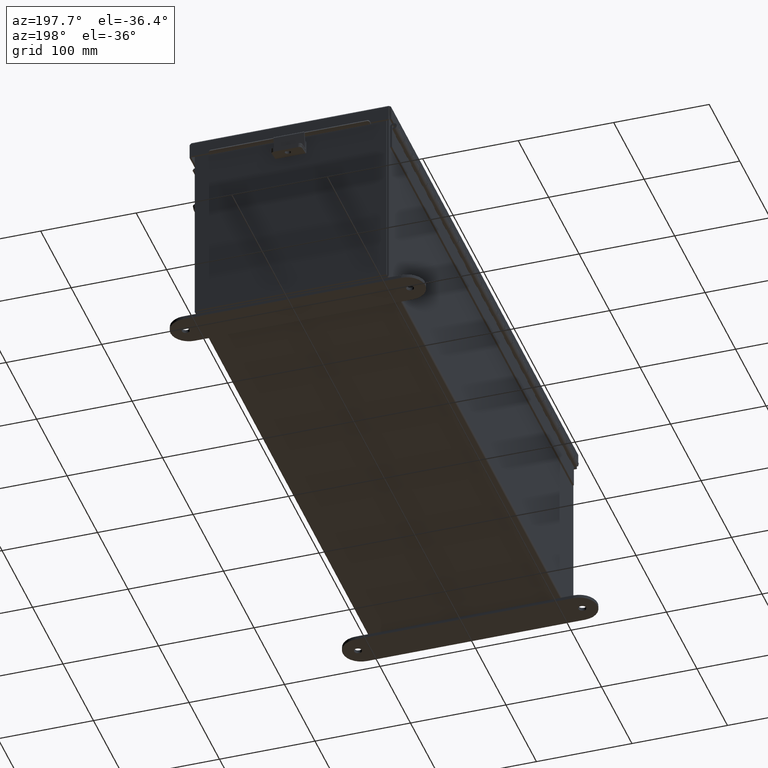
[diagram: clean part render]
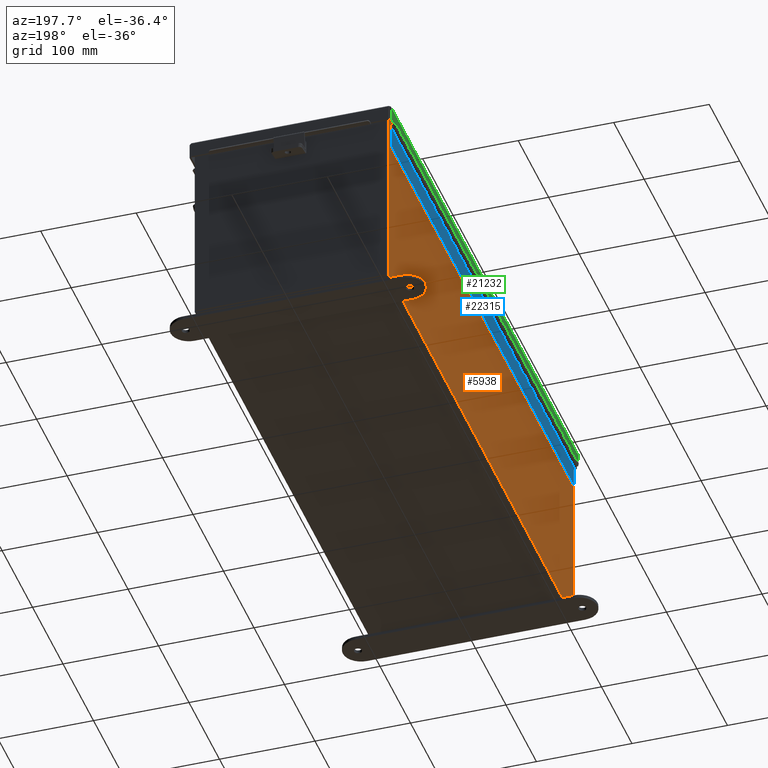
[diagram: same view with three faces highlighted in distinct colors, each labeled with its STEP entity id]
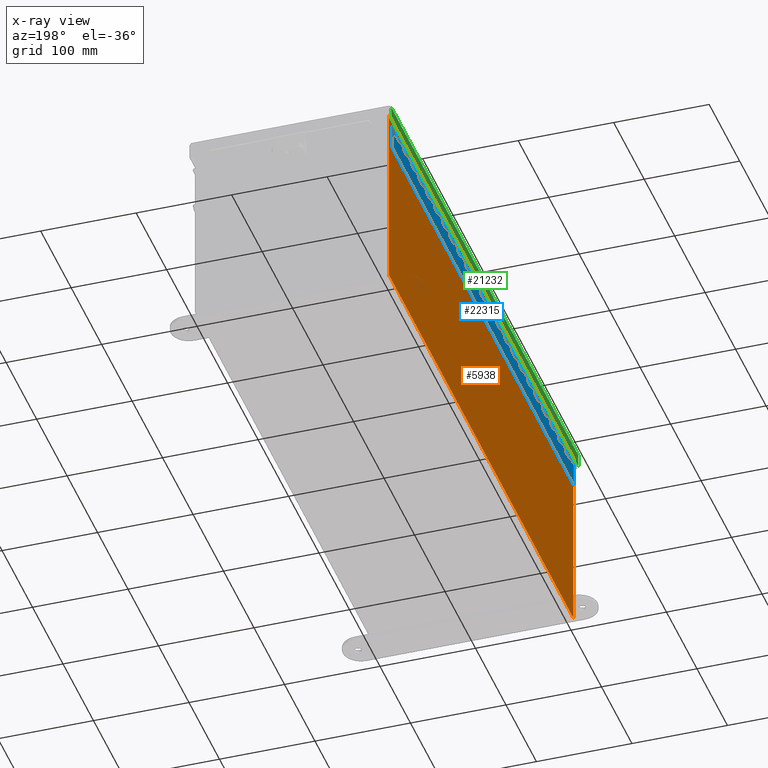
[diagram: x-ray of the same camera — body ghosted, the three highlighted faces saturated]
A machine part, auxiliary view with three faces highlighted in distinct colors.
The next image is the same camera in x-ray (body ghosted, the three faces saturated) — at least one of them is partly hidden behind the body in this view.
Their STEP definitions:

[orange] entity #5938 — the highlighted planar face has unit normal (1, 0, 0).
#1384 = ORIENTED_EDGE ( 'NONE', *, *, #4118, .T. ) ;
#1809 = CARTESIAN_POINT ( 'NONE',  ( -4.000000000000027500, 11.92529999999999600, 7.837599999999999200 ) ) ;
#3197 = CARTESIAN_POINT ( 'NONE',  ( -4.000000000000000000, -11.92530000000000000, -1.085909577481544600E-014 ) ) ;
#3208 = FACE_OUTER_BOUND ( 'NONE', #7703, .T. ) ;
#4118 = EDGE_CURVE ( 'NONE', #14243, #6559, #22078, .T. ) ;
#4441 = PLANE ( 'NONE',  #11588 ) ;
#5795 = ORIENTED_EDGE ( 'NONE', *, *, #16613, .T. ) ;
#5938 = ADVANCED_FACE ( 'NONE', ( #3208 ), #4441, .F. ) ;
#6199 = DIRECTION ( 'NONE',  ( 1.000000000000000000, 0.0000000000000000000, 3.479795166820705900E-015 ) ) ;
#6559 = VERTEX_POINT ( 'NONE', #11099 ) ;
#6558 = ORIENTED_EDGE ( 'NONE', *, *, #8120, .T. ) ;
#7015 = EDGE_CURVE ( 'NONE', #18947, #6559, #15486, .T. ) ;
#7703 = EDGE_LOOP ( 'NONE', ( #6558, #1384, #19784, #5795 ) ) ;
#7729 = DIRECTION ( 'NONE',  ( 0.0000000000000000000, 1.000000000000000000, 0.0000000000000000000 ) ) ;
#8120 = EDGE_CURVE ( 'NONE', #16952, #14243, #8893, .T. ) ;
#8604 = VECTOR ( 'NONE', #9593, 39.37007874015748100 ) ;
#8893 = LINE ( 'NONE', #18190, #18187 ) ;
#9593 = DIRECTION ( 'NONE',  ( 3.479795166820706300E-015, 0.0000000000000000000, -1.000000000000000000 ) ) ;
#10413 = DIRECTION ( 'NONE',  ( 7.971515555031526700E-032, 1.000000000000000000, -2.290800226127865500E-017 ) ) ;
#10811 = VECTOR ( 'NONE', #10413, 39.37007874015748100 ) ;
#11099 = CARTESIAN_POINT ( 'NONE',  ( -4.000000000000000000, 11.92529999999999600, 0.01300000000000011600 ) ) ;
#11408 = CARTESIAN_POINT ( 'NONE',  ( -4.000000000000000000, 0.0000000000000000000, -1.417999849211356600E-014 ) ) ;
#11588 = AXIS2_PLACEMENT_3D ( 'NONE', #11408, #6199, #18438 ) ;
#11962 = VECTOR ( 'NONE', #20673, 39.37007874015748100 ) ;
#14243 = VERTEX_POINT ( 'NONE', #1809 ) ;
#14786 = CARTESIAN_POINT ( 'NONE',  ( -4.000000000000000000, 11.92529999999999600, -1.417999849211356600E-014 ) ) ;
#15486 = LINE ( 'NONE', #19135, #10811 ) ;
#16329 = CARTESIAN_POINT ( 'NONE',  ( -4.000000000000027500, -11.92529999999999500, 7.837599999999999200 ) ) ;
#16613 = EDGE_CURVE ( 'NONE', #18947, #16952, #19651, .T. ) ;
#16952 = VERTEX_POINT ( 'NONE', #16329 ) ;
#18187 = VECTOR ( 'NONE', #7729, 39.37007874015748100 ) ;
#18190 = CARTESIAN_POINT ( 'NONE',  ( -4.000000000000027500, -11.92529999999999600, 7.837599999999999200 ) ) ;
#18438 = DIRECTION ( 'NONE',  ( 3.479795166820705900E-015, 0.0000000000000000000, -1.000000000000000000 ) ) ;
#18947 = VERTEX_POINT ( 'NONE', #21495 ) ;
#19135 = CARTESIAN_POINT ( 'NONE',  ( -4.000000000000000000, 11.92529999999999600, 0.01299999999999984300 ) ) ;
#19651 = LINE ( 'NONE', #3197, #11962 ) ;
#19784 = ORIENTED_EDGE ( 'NONE', *, *, #7015, .F. ) ;
#20673 = DIRECTION ( 'NONE',  ( -3.479795166820706300E-015, 2.783836133456565100E-016, 1.000000000000000000 ) ) ;
#21495 = CARTESIAN_POINT ( 'NONE',  ( -4.000000000000000000, -11.92529999999999600, 0.01300000000000039000 ) ) ;
#22078 = LINE ( 'NONE', #14786, #8604 ) ;

[blue] entity #22315 — the highlighted planar face has unit normal (1, -0, 0).
#4 = VERTEX_POINT ( 'NONE', #5589 ) ;
#63 = DIRECTION ( 'NONE',  ( 0.0000000000000000000, 1.000000000000000000, 0.0000000000000000000 ) ) ;
#79 = VERTEX_POINT ( 'NONE', #9983 ) ;
#120 = LINE ( 'NONE', #20622, #22395 ) ;
#134 = VECTOR ( 'NONE', #10763, 39.37007874015748100 ) ;
#136 = LINE ( 'NONE', #13742, #13594 ) ;
#138 = VERTEX_POINT ( 'NONE', #22356 ) ;
#184 = CARTESIAN_POINT ( 'NONE',  ( 0.1365000000000000100, 22.49999999999999300, -1.707404996040164500E-017 ) ) ;
#267 = CARTESIAN_POINT ( 'NONE',  ( 0.0000000000000000000, 19.49999999999999300, 0.0000000000000000000 ) ) ;
#286 = DIRECTION ( 'NONE',  ( 0.0000000000000000000, 1.000000000000000000, 0.0000000000000000000 ) ) ;
#302 = DIRECTION ( 'NONE',  ( 0.0000000000000000000, 1.000000000000000000, 0.0000000000000000000 ) ) ;
#314 = VECTOR ( 'NONE', #21324, 39.37007874015748100 ) ;
#349 = ORIENTED_EDGE ( 'NONE', *, *, #15854, .T. ) ;
#382 = VERTEX_POINT ( 'NONE', #17758 ) ;
#408 = CARTESIAN_POINT ( 'NONE',  ( 0.1365000000000000100, 0.0000000000000000000, -1.707404996040164500E-017 ) ) ;
#417 = ORIENTED_EDGE ( 'NONE', *, *, #5519, .T. ) ;
#436 = CARTESIAN_POINT ( 'NONE',  ( 0.1365000000000000100, 0.0000000000000000000, -1.707404996040164500E-017 ) ) ;
#446 = EDGE_CURVE ( 'NONE', #10079, #7399, #13606, .T. ) ;
#594 = DIRECTION ( 'NONE',  ( -1.000000000000000000, 0.0000000000000000000, 0.0000000000000000000 ) ) ;
#612 = EDGE_CURVE ( 'NONE', #9544, #16059, #6733, .T. ) ;
#675 = VERTEX_POINT ( 'NONE', #6410 ) ;
#711 = CARTESIAN_POINT ( 'NONE',  ( 0.2730000000000000200, 12.99999999999999300, 0.0000000000000000000 ) ) ;
#770 = VERTEX_POINT ( 'NONE', #2746 ) ;
#829 = CARTESIAN_POINT ( 'NONE',  ( 0.2730000000000000200, 19.49999999999999300, 0.0000000000000000000 ) ) ;
#881 = VECTOR ( 'NONE', #18788, 39.37007874015748100 ) ;
#947 = VECTOR ( 'NONE', #5259, 39.37007874015748100 ) ;
#957 = LINE ( 'NONE', #4214, #14380 ) ;
#960 = ORIENTED_EDGE ( 'NONE', *, *, #14763, .T. ) ;
#1060 = EDGE_CURVE ( 'NONE', #7608, #14425, #16567, .T. ) ;
#1064 = VERTEX_POINT ( 'NONE', #5614 ) ;
#1116 = EDGE_CURVE ( 'NONE', #3276, #675, #6163, .T. ) ;
#1196 = CARTESIAN_POINT ( 'NONE',  ( 0.1365000000000000100, 0.0000000000000000000, -1.707404996040164500E-017 ) ) ;
#1252 = LINE ( 'NONE', #267, #134 ) ;
#1276 = CARTESIAN_POINT ( 'NONE',  ( 0.1365000000000000100, 0.0000000000000000000, -1.707404996040164500E-017 ) ) ;
#1292 = VERTEX_POINT ( 'NONE', #15052 ) ;
#1325 = VECTOR ( 'NONE', #11392, 39.37007874015748100 ) ;
#1334 = EDGE_CURVE ( 'NONE', #3176, #17278, #16279, .T. ) ;
#1344 = CARTESIAN_POINT ( 'NONE',  ( 0.0000000000000000000, 12.49999999999999100, 0.0000000000000000000 ) ) ;
#1370 = LINE ( 'NONE', #408, #5467 ) ;
#1393 = DIRECTION ( 'NONE',  ( -1.000000000000000000, 0.0000000000000000000, 0.0000000000000000000 ) ) ;
#1401 = EDGE_CURVE ( 'NONE', #20824, #4759, #1760, .T. ) ;
#1411 = VECTOR ( 'NONE', #15684, 39.37007874015748100 ) ;
#1427 = DIRECTION ( 'NONE',  ( 0.0000000000000000000, 1.000000000000000000, 0.0000000000000000000 ) ) ;
#1442 = CARTESIAN_POINT ( 'NONE',  ( 0.2730000000000000200, 9.999999999999994700, 0.0000000000000000000 ) ) ;
#1449 = CARTESIAN_POINT ( 'NONE',  ( 0.1365000000000000100, 0.0000000000000000000, -1.707404996040164500E-017 ) ) ;
#1471 = VECTOR ( 'NONE', #11292, 39.37007874015748100 ) ;
#1480 = DIRECTION ( 'NONE',  ( -1.000000000000000000, 0.0000000000000000000, 0.0000000000000000000 ) ) ;
#1510 = LINE ( 'NONE', #4236, #19037 ) ;
#1534 = VECTOR ( 'NONE', #7979, 39.37007874015748100 ) ;
#1577 = VERTEX_POINT ( 'NONE', #14973 ) ;
#1587 = LINE ( 'NONE', #10254, #16105 ) ;
#1637 = CARTESIAN_POINT ( 'NONE',  ( 0.2730000000000000200, 16.99999999999999300, 0.0000000000000000000 ) ) ;
#1672 = VERTEX_POINT ( 'NONE', #9357 ) ;
#1683 = DIRECTION ( 'NONE',  ( -5.812442539711198700E-018, 1.000000000000000000, 0.0000000000000000000 ) ) ;
#1689 = CARTESIAN_POINT ( 'NONE',  ( 0.2730000000000000200, 15.49999999999999300, 0.0000000000000000000 ) ) ;
#1738 = LINE ( 'NONE', #15005, #5845 ) ;
#1760 = LINE ( 'NONE', #15356, #10008 ) ;
#1783 = EDGE_CURVE ( 'NONE', #15338, #79, #11605, .T. ) ;
#1789 = CARTESIAN_POINT ( 'NONE',  ( 0.0000000000000000000, 0.4999999999999930100, 0.0000000000000000000 ) ) ;
#1791 = ORIENTED_EDGE ( 'NONE', *, *, #21209, .F. ) ;
#1835 = EDGE_CURVE ( 'NONE', #382, #12340, #1738, .T. ) ;
#1855 = ORIENTED_EDGE ( 'NONE', *, *, #12174, .F. ) ;
#1856 = VERTEX_POINT ( 'NONE', #4493 ) ;
#1985 = CARTESIAN_POINT ( 'NONE',  ( 0.1365000000000000100, 0.0000000000000000000, -1.707404996040164500E-017 ) ) ;
#2035 = ORIENTED_EDGE ( 'NONE', *, *, #8233, .F. ) ;
#2047 = CARTESIAN_POINT ( 'NONE',  ( 0.1365000000000000100, 0.0000000000000000000, -1.707404996040164500E-017 ) ) ;
#2102 = CARTESIAN_POINT ( 'NONE',  ( 0.1365000000000000100, 22.99999999999999300, -1.707404996040164500E-017 ) ) ;
#2109 = VERTEX_POINT ( 'NONE', #14060 ) ;
#2171 = LINE ( 'NONE', #11581, #19718 ) ;
#2202 = CARTESIAN_POINT ( 'NONE',  ( 0.0000000000000000000, 6.999999999999993800, 0.0000000000000000000 ) ) ;
#2203 = DIRECTION ( 'NONE',  ( 0.0000000000000000000, 1.000000000000000000, 0.0000000000000000000 ) ) ;
#2272 = DIRECTION ( 'NONE',  ( 0.0000000000000000000, 1.000000000000000000, 0.0000000000000000000 ) ) ;
#2374 = VERTEX_POINT ( 'NONE', #18807 ) ;
#2385 = VECTOR ( 'NONE', #21611, 39.37007874015748100 ) ;
#2433 = ORIENTED_EDGE ( 'NONE', *, *, #20942, .F. ) ;
#2451 = EDGE_CURVE ( 'NONE', #16815, #12675, #17705, .T. ) ;
#2476 = CARTESIAN_POINT ( 'NONE',  ( 0.1365000000000000100, 0.0000000000000000000, -1.707404996040164500E-017 ) ) ;
#2499 = CARTESIAN_POINT ( 'NONE',  ( 0.2730000000000000200, -5.000000000000000000, 0.0000000000000000000 ) ) ;
#2514 = EDGE_CURVE ( 'NONE', #13438, #21179, #21306, .T. ) ;
#2518 = CARTESIAN_POINT ( 'NONE',  ( 0.2730000000000000200, -4.000000000000000000, 0.0000000000000000000 ) ) ;
#2537 = ORIENTED_EDGE ( 'NONE', *, *, #7381, .F. ) ;
#2584 = LINE ( 'NONE', #14913, #7232 ) ;
#2668 = LINE ( 'NONE', #18397, #6765 ) ;
#2670 = CARTESIAN_POINT ( 'NONE',  ( 0.2730000000000000200, 13.49999999999999100, 0.0000000000000000000 ) ) ;
#2679 = VECTOR ( 'NONE', #20799, 39.37007874015748100 ) ;
#2738 = VECTOR ( 'NONE', #14816, 39.37007874015748100 ) ;
#2746 = CARTESIAN_POINT ( 'NONE',  ( 0.1365000000000000100, 0.4999999999999930100, -1.707404996040164500E-017 ) ) ;
#2807 = EDGE_CURVE ( 'NONE', #2374, #1856, #15239, .T. ) ;
#2838 = VECTOR ( 'NONE', #4961, 39.37007874015748100 ) ;
#2842 = EDGE_CURVE ( 'NONE', #4426, #7929, #4810, .T. ) ;
#2855 = EDGE_CURVE ( 'NONE', #4177, #20501, #136, .T. ) ;
#2916 = ORIENTED_EDGE ( 'NONE', *, *, #21119, .T. ) ;
#2975 = ORIENTED_EDGE ( 'NONE', *, *, #17619, .T. ) ;
#2977 = DIRECTION ( 'NONE',  ( 0.0000000000000000000, 1.000000000000000000, 0.0000000000000000000 ) ) ;
#3002 = VERTEX_POINT ( 'NONE', #5287 ) ;
#3017 = VERTEX_POINT ( 'NONE', #7049 ) ;
#3039 = DIRECTION ( 'NONE',  ( 0.0000000000000000000, 1.000000000000000000, 0.0000000000000000000 ) ) ;
#3046 = LINE ( 'NONE', #17919, #16452 ) ;
#3149 = VERTEX_POINT ( 'NONE', #17906 ) ;
#3175 = DIRECTION ( 'NONE',  ( -1.000000000000000000, 0.0000000000000000000, 0.0000000000000000000 ) ) ;
#3176 = VERTEX_POINT ( 'NONE', #16232 ) ;
#3187 = CARTESIAN_POINT ( 'NONE',  ( 1.136500000000000100, 0.0000000000000000000, 0.0000000000000000000 ) ) ;
#3196 = CARTESIAN_POINT ( 'NONE',  ( 0.2730000000000000200, 5.999999999999994700, 0.0000000000000000000 ) ) ;
#3223 = VERTEX_POINT ( 'NONE', #7598 ) ;
#3224 = EDGE_CURVE ( 'NONE', #16088, #16815, #22665, .T. ) ;
#3276 = VERTEX_POINT ( 'NONE', #9523 ) ;
#3352 = CARTESIAN_POINT ( 'NONE',  ( 0.2730000000000000200, 14.99999999999999500, 0.0000000000000000000 ) ) ;
#3354 = CARTESIAN_POINT ( 'NONE',  ( 0.2730000000000000200, 0.4999999999999930100, 0.0000000000000000000 ) ) ;
#3368 = CARTESIAN_POINT ( 'NONE',  ( 1.136500000000000100, 0.0000000000000000000, 0.0000000000000000000 ) ) ;
#3539 = ORIENTED_EDGE ( 'NONE', *, *, #12664, .F. ) ;
#3543 = EDGE_CURVE ( 'NONE', #9341, #1577, #11361, .T. ) ;
#3568 = VECTOR ( 'NONE', #22643, 39.37007874015748100 ) ;
#3630 = VERTEX_POINT ( 'NONE', #11648 ) ;
#3705 = CARTESIAN_POINT ( 'NONE',  ( 0.0000000000000000000, 10.99999999999999500, 0.0000000000000000000 ) ) ;
#3707 = CARTESIAN_POINT ( 'NONE',  ( 0.2730000000000000200, 20.99999999999999600, 0.0000000000000000000 ) ) ;
#3721 = EDGE_CURVE ( 'NONE', #19454, #11043, #16270, .T. ) ;
#3740 = VERTEX_POINT ( 'NONE', #8533 ) ;
#3795 = CARTESIAN_POINT ( 'NONE',  ( 0.1365000000000000100, 20.49999999999999300, -1.707404996040164500E-017 ) ) ;
#3814 = VERTEX_POINT ( 'NONE', #1689 ) ;
#3815 = ORIENTED_EDGE ( 'NONE', *, *, #22150, .F. ) ;
#3869 = DIRECTION ( 'NONE',  ( -1.000000000000000000, 0.0000000000000000000, 0.0000000000000000000 ) ) ;
#3875 = EDGE_CURVE ( 'NONE', #18100, #3223, #4765, .T. ) ;
#3894 = VERTEX_POINT ( 'NONE', #17684 ) ;
#3973 = VERTEX_POINT ( 'NONE', #5661 ) ;
#3975 = CARTESIAN_POINT ( 'NONE',  ( 0.0000000000000000000, 16.49999999999999300, 0.0000000000000000000 ) ) ;
#4060 = VECTOR ( 'NONE', #21547, 39.37007874015748100 ) ;
#4115 = VECTOR ( 'NONE', #1683, 39.37007874015748100 ) ;
#4117 = EDGE_CURVE ( 'NONE', #21343, #9621, #5569, .T. ) ;
#4144 = CARTESIAN_POINT ( 'NONE',  ( 0.2730000000000000200, -2.000000000000000000, 0.0000000000000000000 ) ) ;
#4170 = CARTESIAN_POINT ( 'NONE',  ( 0.0000000000000000000, 18.49999999999999300, 0.0000000000000000000 ) ) ;
#4177 = VERTEX_POINT ( 'NONE', #7985 ) ;
#4214 = CARTESIAN_POINT ( 'NONE',  ( 0.2730000000000000200, -14.00000000000000000, 0.0000000000000000000 ) ) ;
#4236 = CARTESIAN_POINT ( 'NONE',  ( 0.1365000000000000100, 0.0000000000000000000, -1.707404996040164500E-017 ) ) ;
#4260 = LINE ( 'NONE', #10799, #17130 ) ;
#4278 = VECTOR ( 'NONE', #7492, 39.37007874015748100 ) ;
#4364 = VERTEX_POINT ( 'NONE', #4958 ) ;
#4370 = DIRECTION ( 'NONE',  ( -1.000000000000000000, 0.0000000000000000000, 0.0000000000000000000 ) ) ;
#4371 = ORIENTED_EDGE ( 'NONE', *, *, #4989, .T. ) ;
#4386 = ORIENTED_EDGE ( 'NONE', *, *, #9721, .T. ) ;
#4426 = VERTEX_POINT ( 'NONE', #3352 ) ;
#4463 = CARTESIAN_POINT ( 'NONE',  ( 0.2730000000000000200, 3.499999999999992900, 0.0000000000000000000 ) ) ;
#4489 = DIRECTION ( 'NONE',  ( 0.0000000000000000000, 1.000000000000000000, 0.0000000000000000000 ) ) ;
#4493 = CARTESIAN_POINT ( 'NONE',  ( 0.1365000000000000100, 3.999999999999994700, -1.707404996040164500E-017 ) ) ;
#4540 = ORIENTED_EDGE ( 'NONE', *, *, #11665, .F. ) ;
#4558 = ORIENTED_EDGE ( 'NONE', *, *, #6353, .F. ) ;
#4599 = VERTEX_POINT ( 'NONE', #12670 ) ;
#4648 = DIRECTION ( 'NONE',  ( -1.000000000000000000, 0.0000000000000000000, 0.0000000000000000000 ) ) ;
#4665 = EDGE_CURVE ( 'NONE', #11736, #22318, #12120, .T. ) ;
#4671 = ORIENTED_EDGE ( 'NONE', *, *, #17880, .F. ) ;
#4733 = VECTOR ( 'NONE', #12446, 39.37007874015748100 ) ;
#4759 = VERTEX_POINT ( 'NONE', #6165 ) ;
#4765 = LINE ( 'NONE', #5358, #17094 ) ;
#4810 = LINE ( 'NONE', #4926, #18227 ) ;
#4817 = LINE ( 'NONE', #14092, #9496 ) ;
#4895 = VECTOR ( 'NONE', #10499, 39.37007874015748100 ) ;
#4926 = CARTESIAN_POINT ( 'NONE',  ( 0.0000000000000000000, 14.99999999999999500, 0.0000000000000000000 ) ) ;
#4958 = CARTESIAN_POINT ( 'NONE',  ( 0.1365000000000000100, 6.499999999999992000, -1.707404996040164500E-017 ) ) ;
#4961 = DIRECTION ( 'NONE',  ( -1.000000000000000000, 0.0000000000000000000, 0.0000000000000000000 ) ) ;
#4974 = EDGE_CURVE ( 'NONE', #1856, #3630, #19533, .T. ) ;
#4976 = LINE ( 'NONE', #1985, #314 ) ;
#4977 = EDGE_CURVE ( 'NONE', #7399, #22153, #6636, .T. ) ;
#4989 = EDGE_CURVE ( 'NONE', #13719, #12123, #14312, .T. ) ;
#4997 = VECTOR ( 'NONE', #18236, 39.37007874015748100 ) ;
#5013 = CARTESIAN_POINT ( 'NONE',  ( 1.136500000000000100, 23.50000000000000000, 0.0000000000000000000 ) ) ;
#5032 = VECTOR ( 'NONE', #15218, 39.37007874015748100 ) ;
#5038 = LINE ( 'NONE', #11813, #13814 ) ;
#5050 = LINE ( 'NONE', #19287, #947 ) ;
#5060 = VECTOR ( 'NONE', #20006, 39.37007874015748100 ) ;
#5078 = LINE ( 'NONE', #6624, #22131 ) ;
#5101 = VERTEX_POINT ( 'NONE', #14212 ) ;
#5117 = EDGE_CURVE ( 'NONE', #18237, #19549, #16759, .T. ) ;
#5259 = DIRECTION ( 'NONE',  ( -1.000000000000000000, 0.0000000000000000000, 0.0000000000000000000 ) ) ;
#5278 = CARTESIAN_POINT ( 'NONE',  ( 0.2730000000000000200, 16.49999999999999300, 0.0000000000000000000 ) ) ;
#5281 = LINE ( 'NONE', #19364, #4733 ) ;
#5287 = CARTESIAN_POINT ( 'NONE',  ( 0.2730000000000000200, 17.49999999999999300, 0.0000000000000000000 ) ) ;
#5321 = CARTESIAN_POINT ( 'NONE',  ( 0.0000000000000000000, 15.49999999999999300, 0.0000000000000000000 ) ) ;
#5330 = VECTOR ( 'NONE', #14206, 39.37007874015748100 ) ;
#5354 = VERTEX_POINT ( 'NONE', #20399 ) ;
#5358 = CARTESIAN_POINT ( 'NONE',  ( 0.0000000000000000000, 9.999999999999994700, 0.0000000000000000000 ) ) ;
#5420 = VECTOR ( 'NONE', #8214, 39.37007874015748100 ) ;
#5444 = ORIENTED_EDGE ( 'NONE', *, *, #11615, .F. ) ;
#5467 = VECTOR ( 'NONE', #14432, 39.37007874015748100 ) ;
#5519 = EDGE_CURVE ( 'NONE', #22190, #13215, #7327, .T. ) ;
#5543 = LINE ( 'NONE', #2476, #4997 ) ;
#5563 = LINE ( 'NONE', #20233, #10777 ) ;
#5569 = LINE ( 'NONE', #21783, #17356 ) ;
#5578 = LINE ( 'NONE', #16885, #5032 ) ;
#5589 = CARTESIAN_POINT ( 'NONE',  ( 0.2730000000000000200, 8.499999999999992900, 0.0000000000000000000 ) ) ;
#5614 = CARTESIAN_POINT ( 'NONE',  ( 0.2730000000000000200, 18.99999999999999300, 0.0000000000000000000 ) ) ;
#5661 = CARTESIAN_POINT ( 'NONE',  ( 0.1365000000000000100, 17.49999999999999300, -1.707404996040164500E-017 ) ) ;
#5721 = ORIENTED_EDGE ( 'NONE', *, *, #13465, .T. ) ;
#5845 = VECTOR ( 'NONE', #16740, 39.37007874015748100 ) ;
#5860 = LINE ( 'NONE', #9277, #19312 ) ;
#5894 = VECTOR ( 'NONE', #7094, 39.37007874015748100 ) ;
#5921 = DIRECTION ( 'NONE',  ( -1.000000000000000000, 0.0000000000000000000, 0.0000000000000000000 ) ) ;
#5936 = ORIENTED_EDGE ( 'NONE', *, *, #20024, .F. ) ;
#5939 = DIRECTION ( 'NONE',  ( 0.0000000000000000000, 1.000000000000000000, 0.0000000000000000000 ) ) ;
#5974 = DIRECTION ( 'NONE',  ( 0.0000000000000000000, 1.000000000000000000, 0.0000000000000000000 ) ) ;
#6003 = LINE ( 'NONE', #16213, #19451 ) ;
#6075 = CARTESIAN_POINT ( 'NONE',  ( 0.2730000000000000200, -18.00000000000000000, 0.0000000000000000000 ) ) ;
#6125 = LINE ( 'NONE', #9477, #1471 ) ;
#6127 = EDGE_CURVE ( 'NONE', #13438, #10124, #17963, .T. ) ;
#6163 = LINE ( 'NONE', #19789, #10816 ) ;
#6165 = CARTESIAN_POINT ( 'NONE',  ( 0.1365000000000000100, 4.999999999999993800, -1.707404996040164500E-017 ) ) ;
#6185 = CARTESIAN_POINT ( 'NONE',  ( 0.1365000000000000100, 15.99999999999999500, -1.707404996040164500E-017 ) ) ;
#6307 = ORIENTED_EDGE ( 'NONE', *, *, #1783, .F. ) ;
#6340 = DIRECTION ( 'NONE',  ( 1.000000000000000000, 0.0000000000000000000, 0.0000000000000000000 ) ) ;
#6353 = EDGE_CURVE ( 'NONE', #9465, #22083, #4817, .T. ) ;
#6376 = CARTESIAN_POINT ( 'NONE',  ( 0.0000000000000000000, 18.99999999999999300, 0.0000000000000000000 ) ) ;
#6377 = DIRECTION ( 'NONE',  ( -1.000000000000000000, 0.0000000000000000000, 0.0000000000000000000 ) ) ;
#6409 = VERTEX_POINT ( 'NONE', #21327 ) ;
#6410 = CARTESIAN_POINT ( 'NONE',  ( 0.2730000000000000200, 6.999999999999993800, 0.0000000000000000000 ) ) ;
#6549 = DIRECTION ( 'NONE',  ( -1.000000000000000000, 0.0000000000000000000, 0.0000000000000000000 ) ) ;
#6620 = ORIENTED_EDGE ( 'NONE', *, *, #4974, .F. ) ;
#6624 = CARTESIAN_POINT ( 'NONE',  ( 0.1365000000000000100, 0.0000000000000000000, -1.707404996040164500E-017 ) ) ;
#6636 = LINE ( 'NONE', #17023, #881 ) ;
#6657 = CARTESIAN_POINT ( 'NONE',  ( 0.2730000000000000200, -19.00000000000000000, 0.0000000000000000000 ) ) ;
#6676 = CARTESIAN_POINT ( 'NONE',  ( 0.2730000000000000200, 11.49999999999999300, 0.0000000000000000000 ) ) ;
#6698 = VECTOR ( 'NONE', #10206, 39.37007874015748100 ) ;
#6733 = LINE ( 'NONE', #16674, #1534 ) ;
#6765 = VECTOR ( 'NONE', #21997, 39.37007874015748100 ) ;
#6877 = ORIENTED_EDGE ( 'NONE', *, *, #8289, .F. ) ;
#6901 = EDGE_CURVE ( 'NONE', #21234, #12877, #120, .T. ) ;
#6953 = CARTESIAN_POINT ( 'NONE',  ( 0.2730000000000000200, 15.99999999999999500, 0.0000000000000000000 ) ) ;
#7003 = VERTEX_POINT ( 'NONE', #3354 ) ;
#7049 = CARTESIAN_POINT ( 'NONE',  ( 0.2730000000000000200, 17.99999999999999300, 0.0000000000000000000 ) ) ;
#7059 = LINE ( 'NONE', #7823, #21072 ) ;
#7067 = EDGE_CURVE ( 'NONE', #11043, #12576, #5050, .T. ) ;
#7094 = DIRECTION ( 'NONE',  ( -1.000000000000000000, 0.0000000000000000000, 0.0000000000000000000 ) ) ;
#7106 = EDGE_CURVE ( 'NONE', #9056, #22717, #13826, .T. ) ;
#7150 = LINE ( 'NONE', #19045, #1411 ) ;
#7160 = CARTESIAN_POINT ( 'NONE',  ( 0.2730000000000000200, 11.99999999999999500, 0.0000000000000000000 ) ) ;
#7232 = VECTOR ( 'NONE', #4489, 39.37007874015748100 ) ;
#7259 = VECTOR ( 'NONE', #3869, 39.37007874015748100 ) ;
#7327 = LINE ( 'NONE', #22586, #2679 ) ;
#7359 = LINE ( 'NONE', #8970, #16126 ) ;
#7371 = EDGE_CURVE ( 'NONE', #7929, #8549, #5078, .T. ) ;
#7381 = EDGE_CURVE ( 'NONE', #4177, #20415, #13312, .T. ) ;
#7399 = VERTEX_POINT ( 'NONE', #3196 ) ;
#7482 = LINE ( 'NONE', #18910, #2838 ) ;
#7492 = DIRECTION ( 'NONE',  ( 0.0000000000000000000, 1.000000000000000000, 0.0000000000000000000 ) ) ;
#7598 = CARTESIAN_POINT ( 'NONE',  ( 0.1365000000000000100, 9.999999999999994700, -1.707404996040164500E-017 ) ) ;
#7603 = LINE ( 'NONE', #12851, #2385 ) ;
#7608 = VERTEX_POINT ( 'NONE', #21275 ) ;
#7681 = CARTESIAN_POINT ( 'NONE',  ( 0.1365000000000000100, 11.49999999999999300, -1.707404996040164500E-017 ) ) ;
#7684 = ORIENTED_EDGE ( 'NONE', *, *, #3721, .F. ) ;
#7691 = LINE ( 'NONE', #3368, #4115 ) ;
#7727 = ORIENTED_EDGE ( 'NONE', *, *, #7106, .F. ) ;
#7747 = ORIENTED_EDGE ( 'NONE', *, *, #2855, .T. ) ;
#7805 = EDGE_CURVE ( 'NONE', #3894, #20824, #10289, .T. ) ;
#7810 = EDGE_CURVE ( 'NONE', #22768, #1672, #1510, .T. ) ;
#7813 = DIRECTION ( 'NONE',  ( 0.0000000000000000000, 1.000000000000000000, 0.0000000000000000000 ) ) ;
#7823 = CARTESIAN_POINT ( 'NONE',  ( 0.1365000000000000100, 0.0000000000000000000, -1.707404996040164500E-017 ) ) ;
#7858 = CARTESIAN_POINT ( 'NONE',  ( 0.0000000000000000000, 17.49999999999999300, 0.0000000000000000000 ) ) ;
#7863 = CARTESIAN_POINT ( 'NONE',  ( 0.2730000000000000200, 1.499999999999992200, 0.0000000000000000000 ) ) ;
#7877 = ORIENTED_EDGE ( 'NONE', *, *, #19597, .T. ) ;
#7883 = VECTOR ( 'NONE', #4648, 39.37007874015748100 ) ;
#7929 = VERTEX_POINT ( 'NONE', #10422 ) ;
#7947 = CARTESIAN_POINT ( 'NONE',  ( 0.0000000000000000000, 3.999999999999994700, 0.0000000000000000000 ) ) ;
#7948 = CARTESIAN_POINT ( 'NONE',  ( 0.2730000000000000200, 7.499999999999992000, 0.0000000000000000000 ) ) ;
#7975 = CARTESIAN_POINT ( 'NONE',  ( 1.136499999999999800, 23.50000000000000000, 0.0000000000000000000 ) ) ;
#7979 = DIRECTION ( 'NONE',  ( 0.0000000000000000000, 1.000000000000000000, 0.0000000000000000000 ) ) ;
#7985 = CARTESIAN_POINT ( 'NONE',  ( 0.2730000000000000200, 21.49999999999999300, 0.0000000000000000000 ) ) ;
#8016 = CARTESIAN_POINT ( 'NONE',  ( 0.1365000000000000100, 7.499999999999992000, -1.707404996040164500E-017 ) ) ;
#8040 = EDGE_CURVE ( 'NONE', #22318, #18818, #10532, .T. ) ;
#8045 = LINE ( 'NONE', #15529, #12114 ) ;
#8084 = VECTOR ( 'NONE', #10152, 39.37007874015748100 ) ;
#8117 = VECTOR ( 'NONE', #1427, 39.37007874015748100 ) ;
#8175 = VERTEX_POINT ( 'NONE', #829 ) ;
#8191 = VERTEX_POINT ( 'NONE', #18355 ) ;
#8201 = ORIENTED_EDGE ( 'NONE', *, *, #22077, .F. ) ;
#8214 = DIRECTION ( 'NONE',  ( 0.0000000000000000000, 1.000000000000000000, 0.0000000000000000000 ) ) ;
#8216 = VERTEX_POINT ( 'NONE', #2670 ) ;
#8221 = VECTOR ( 'NONE', #13584, 39.37007874015748100 ) ;
#8233 = EDGE_CURVE ( 'NONE', #17278, #9146, #2584, .T. ) ;
#8267 = ORIENTED_EDGE ( 'NONE', *, *, #9031, .F. ) ;
#8269 = DIRECTION ( 'NONE',  ( 0.0000000000000000000, 1.000000000000000000, 0.0000000000000000000 ) ) ;
#8289 = EDGE_CURVE ( 'NONE', #4759, #3740, #19577, .T. ) ;
#8293 = EDGE_CURVE ( 'NONE', #3894, #3630, #5578, .T. ) ;
#8376 = CARTESIAN_POINT ( 'NONE',  ( 0.0000000000000000000, 21.99999999999999600, 0.0000000000000000000 ) ) ;
#8407 = DIRECTION ( 'NONE',  ( 0.0000000000000000000, 1.000000000000000000, 0.0000000000000000000 ) ) ;
#8428 = ORIENTED_EDGE ( 'NONE', *, *, #13586, .F. ) ;
#8447 = VERTEX_POINT ( 'NONE', #5013 ) ;
#8533 = CARTESIAN_POINT ( 'NONE',  ( 0.1365000000000000100, 5.499999999999992900, -1.707404996040164500E-017 ) ) ;
#8549 = VERTEX_POINT ( 'NONE', #12286 ) ;
#8612 = EDGE_CURVE ( 'NONE', #13719, #17029, #8872, .T. ) ;
#8618 = VERTEX_POINT ( 'NONE', #3795 ) ;
#8624 = VECTOR ( 'NONE', #10624, 39.37007874015748100 ) ;
#8668 = VECTOR ( 'NONE', #13714, 39.37007874015748100 ) ;
#8713 = ORIENTED_EDGE ( 'NONE', *, *, #3543, .T. ) ;
#8757 = CARTESIAN_POINT ( 'NONE',  ( 0.0000000000000000000, 20.49999999999999300, 0.0000000000000000000 ) ) ;
#8765 = LINE ( 'NONE', #20087, #21668 ) ;
#8806 = CARTESIAN_POINT ( 'NONE',  ( 0.2730000000000000200, -11.00000000000000000, 0.0000000000000000000 ) ) ;
#8855 = DIRECTION ( 'NONE',  ( -1.000000000000000000, 0.0000000000000000000, 0.0000000000000000000 ) ) ;
#8857 = DIRECTION ( 'NONE',  ( -1.000000000000000000, 0.0000000000000000000, 0.0000000000000000000 ) ) ;
#8866 = CARTESIAN_POINT ( 'NONE',  ( 0.2730000000000000200, -2.999999999999999600, 0.0000000000000000000 ) ) ;
#8872 = LINE ( 'NONE', #14290, #12977 ) ;
#8891 = DIRECTION ( 'NONE',  ( -1.000000000000000000, 0.0000000000000000000, 0.0000000000000000000 ) ) ;
#8903 = ORIENTED_EDGE ( 'NONE', *, *, #1401, .F. ) ;
#8939 = ORIENTED_EDGE ( 'NONE', *, *, #17825, .F. ) ;
#8970 = CARTESIAN_POINT ( 'NONE',  ( 0.0000000000000000000, 1.499999999999992200, 0.0000000000000000000 ) ) ;
#9031 = EDGE_CURVE ( 'NONE', #8191, #9701, #5038, .T. ) ;
#9054 = CARTESIAN_POINT ( 'NONE',  ( 0.2730000000000000200, 22.99999999999999300, 0.0000000000000000000 ) ) ;
#9056 = VERTEX_POINT ( 'NONE', #6676 ) ;
#9103 = ORIENTED_EDGE ( 'NONE', *, *, #612, .F. ) ;
#9146 = VERTEX_POINT ( 'NONE', #19092 ) ;
#9277 = CARTESIAN_POINT ( 'NONE',  ( 0.0000000000000000000, 12.99999999999999300, 0.0000000000000000000 ) ) ;
#9340 = LINE ( 'NONE', #19117, #18071 ) ;
#9341 = VERTEX_POINT ( 'NONE', #14623 ) ;
#9353 = CARTESIAN_POINT ( 'NONE',  ( 0.2730000000000000200, 22.49999999999999300, 0.0000000000000000000 ) ) ;
#9357 = CARTESIAN_POINT ( 'NONE',  ( 0.1365000000000000100, 23.50000000000000000, -1.707404996040164500E-017 ) ) ;
#9366 = CARTESIAN_POINT ( 'NONE',  ( 0.0000000000000000000, 23.50000000000000000, 0.0000000000000000000 ) ) ;
#9454 = EDGE_CURVE ( 'NONE', #17113, #18296, #5563, .T. ) ;
#9456 = LINE ( 'NONE', #2518, #13562 ) ;
#9465 = VERTEX_POINT ( 'NONE', #20314 ) ;
#9477 = CARTESIAN_POINT ( 'NONE',  ( 0.1365000000000000100, 0.0000000000000000000, -1.707404996040164500E-017 ) ) ;
#9496 = VECTOR ( 'NONE', #21094, 39.37007874015748100 ) ;
#9523 = CARTESIAN_POINT ( 'NONE',  ( 0.2730000000000000200, 6.499999999999992000, 0.0000000000000000000 ) ) ;
#9544 = VERTEX_POINT ( 'NONE', #11788 ) ;
#9574 = LINE ( 'NONE', #8757, #4895 ) ;
#9605 = EDGE_CURVE ( 'NONE', #4, #12340, #7482, .T. ) ;
#9608 = EDGE_CURVE ( 'NONE', #3223, #16116, #12680, .T. ) ;
#9621 = VERTEX_POINT ( 'NONE', #13775 ) ;
#9701 = VERTEX_POINT ( 'NONE', #15836 ) ;
#9716 = DIRECTION ( 'NONE',  ( -1.000000000000000000, 0.0000000000000000000, -0.0000000000000000000 ) ) ;
#9721 = EDGE_CURVE ( 'NONE', #8216, #22083, #5281, .T. ) ;
#9782 = ORIENTED_EDGE ( 'NONE', *, *, #14308, .T. ) ;
#9854 = CARTESIAN_POINT ( 'NONE',  ( 0.2730000000000000200, -11.99999999999999800, 0.0000000000000000000 ) ) ;
#9855 = ORIENTED_EDGE ( 'NONE', *, *, #13976, .T. ) ;
#9860 = VECTOR ( 'NONE', #13275, 39.37007874015748100 ) ;
#9866 = ORIENTED_EDGE ( 'NONE', *, *, #21216, .F. ) ;
#9874 = ORIENTED_EDGE ( 'NONE', *, *, #4117, .F. ) ;
#9889 = LINE ( 'NONE', #6657, #13987 ) ;
#9938 = EDGE_CURVE ( 'NONE', #3002, #3017, #19546, .T. ) ;
#9980 = CARTESIAN_POINT ( 'NONE',  ( 0.1365000000000000100, 8.499999999999992900, -1.707404996040164500E-017 ) ) ;
#9983 = CARTESIAN_POINT ( 'NONE',  ( 0.1365000000000000100, 19.99999999999999300, -1.707404996040164500E-017 ) ) ;
#10008 = VECTOR ( 'NONE', #17090, 39.37007874015748100 ) ;
#10011 = VECTOR ( 'NONE', #18126, 39.37007874015748100 ) ;
#10068 = CARTESIAN_POINT ( 'NONE',  ( 0.0000000000000000000, 2.499999999999991600, 0.0000000000000000000 ) ) ;
#10079 = VERTEX_POINT ( 'NONE', #15133 ) ;
#10119 = ORIENTED_EDGE ( 'NONE', *, *, #2451, .F. ) ;
#10122 = ORIENTED_EDGE ( 'NONE', *, *, #19551, .F. ) ;
#10124 = VERTEX_POINT ( 'NONE', #20830 ) ;
#10131 = CARTESIAN_POINT ( 'NONE',  ( 0.1365000000000000100, 10.49999999999999300, -1.707404996040164500E-017 ) ) ;
#10152 = DIRECTION ( 'NONE',  ( 0.0000000000000000000, 1.000000000000000000, 0.0000000000000000000 ) ) ;
#10206 = DIRECTION ( 'NONE',  ( -1.000000000000000000, 0.0000000000000000000, 0.0000000000000000000 ) ) ;
#10209 = ORIENTED_EDGE ( 'NONE', *, *, #17618, .F. ) ;
#10214 = CARTESIAN_POINT ( 'NONE',  ( 0.0000000000000000000, 5.499999999999992900, 0.0000000000000000000 ) ) ;
#10237 = VECTOR ( 'NONE', #5939, 39.37007874015748100 ) ;
#10246 = EDGE_CURVE ( 'NONE', #19549, #17624, #13502, .T. ) ;
#10254 = CARTESIAN_POINT ( 'NONE',  ( 0.1365000000000000100, 0.0000000000000000000, -1.707404996040164500E-017 ) ) ;
#10274 = CARTESIAN_POINT ( 'NONE',  ( 0.1365000000000000100, 0.0000000000000000000, -1.707404996040164500E-017 ) ) ;
#10289 = LINE ( 'NONE', #6075, #14937 ) ;
#10300 = ORIENTED_EDGE ( 'NONE', *, *, #5117, .F. ) ;
#10331 = ORIENTED_EDGE ( 'NONE', *, *, #16026, .F. ) ;
#10422 = CARTESIAN_POINT ( 'NONE',  ( 0.1365000000000000100, 14.99999999999999500, -1.707404996040164500E-017 ) ) ;
#10463 = DIRECTION ( 'NONE',  ( -1.000000000000000000, 0.0000000000000000000, 0.0000000000000000000 ) ) ;
#10479 = LINE ( 'NONE', #10068, #15142 ) ;
#10499 = DIRECTION ( 'NONE',  ( -1.000000000000000000, 0.0000000000000000000, 0.0000000000000000000 ) ) ;
#10528 = CARTESIAN_POINT ( 'NONE',  ( 0.1365000000000000100, 0.0000000000000000000, -1.707404996040164500E-017 ) ) ;
#10532 = LINE ( 'NONE', #436, #19309 ) ;
#10560 = CARTESIAN_POINT ( 'NONE',  ( 0.2730000000000000200, 0.0000000000000000000, 0.0000000000000000000 ) ) ;
#10605 = CARTESIAN_POINT ( 'NONE',  ( 0.0000000000000000000, 7.499999999999992000, 0.0000000000000000000 ) ) ;
#10621 = DIRECTION ( 'NONE',  ( 0.0000000000000000000, 1.000000000000000000, 0.0000000000000000000 ) ) ;
#10624 = DIRECTION ( 'NONE',  ( 0.0000000000000000000, 1.000000000000000000, 0.0000000000000000000 ) ) ;
#10679 = CARTESIAN_POINT ( 'NONE',  ( 0.1365000000000000100, 16.49999999999999300, -1.707404996040164500E-017 ) ) ;
#10721 = DIRECTION ( 'NONE',  ( -1.000000000000000000, 0.0000000000000000000, 0.0000000000000000000 ) ) ;
#10742 = VECTOR ( 'NONE', #3039, 39.37007874015748100 ) ;
#10763 = DIRECTION ( 'NONE',  ( -1.000000000000000000, 0.0000000000000000000, 0.0000000000000000000 ) ) ;
#10777 = VECTOR ( 'NONE', #11489, 39.37007874015748100 ) ;
#10799 = CARTESIAN_POINT ( 'NONE',  ( 0.1365000000000000100, 0.0000000000000000000, -1.707404996040164500E-017 ) ) ;
#10816 = VECTOR ( 'NONE', #14583, 39.37007874015748100 ) ;
#10977 = DIRECTION ( 'NONE',  ( -1.000000000000000000, 0.0000000000000000000, 0.0000000000000000000 ) ) ;
#11009 = ORIENTED_EDGE ( 'NONE', *, *, #2842, .F. ) ;
#11012 = ORIENTED_EDGE ( 'NONE', *, *, #7371, .F. ) ;
#11043 = VERTEX_POINT ( 'NONE', #1637 ) ;
#11083 = LINE ( 'NONE', #16373, #10011 ) ;
#11117 = LINE ( 'NONE', #5321, #5894 ) ;
#11177 = CARTESIAN_POINT ( 'NONE',  ( 0.1365000000000000100, 6.999999999999993800, -1.707404996040164500E-017 ) ) ;
#11201 = ORIENTED_EDGE ( 'NONE', *, *, #3224, .F. ) ;
#11282 = EDGE_CURVE ( 'NONE', #3149, #2109, #3046, .T. ) ;
#11292 = DIRECTION ( 'NONE',  ( 0.0000000000000000000, 1.000000000000000000, 0.0000000000000000000 ) ) ;
#11361 = LINE ( 'NONE', #22502, #6698 ) ;
#11392 = DIRECTION ( 'NONE',  ( -1.000000000000000000, 0.0000000000000000000, 0.0000000000000000000 ) ) ;
#11403 = ORIENTED_EDGE ( 'NONE', *, *, #16770, .T. ) ;
#11411 = VECTOR ( 'NONE', #8857, 39.37007874015748100 ) ;
#11489 = DIRECTION ( 'NONE',  ( -1.000000000000000000, 0.0000000000000000000, 0.0000000000000000000 ) ) ;
#11534 = CARTESIAN_POINT ( 'NONE',  ( 0.1365000000000000100, 9.499999999999992900, -1.707404996040164500E-017 ) ) ;
#11576 = CARTESIAN_POINT ( 'NONE',  ( 0.2730000000000000200, 19.99999999999999300, 0.0000000000000000000 ) ) ;
#11581 = CARTESIAN_POINT ( 'NONE',  ( 0.0000000000000000000, 17.99999999999999300, 0.0000000000000000000 ) ) ;
#11584 = ORIENTED_EDGE ( 'NONE', *, *, #15564, .T. ) ;
#11590 = DIRECTION ( 'NONE',  ( 0.0000000000000000000, 1.000000000000000000, 0.0000000000000000000 ) ) ;
#11605 = LINE ( 'NONE', #20137, #15725 ) ;
#11615 = EDGE_CURVE ( 'NONE', #17113, #2374, #9889, .T. ) ;
#11616 = EDGE_CURVE ( 'NONE', #10079, #3740, #14530, .T. ) ;
#11632 = VECTOR ( 'NONE', #6377, 39.37007874015748100 ) ;
#11637 = CARTESIAN_POINT ( 'NONE',  ( 0.1365000000000000100, 18.99999999999999300, -1.707404996040164500E-017 ) ) ;
#11642 = VECTOR ( 'NONE', #18140, 39.37007874015748100 ) ;
#11643 = VECTOR ( 'NONE', #20642, 39.37007874015748100 ) ;
#11648 = CARTESIAN_POINT ( 'NONE',  ( 0.1365000000000000100, 4.499999999999992000, -1.707404996040164500E-017 ) ) ;
#11665 = EDGE_CURVE ( 'NONE', #12675, #20501, #12882, .T. ) ;
#11692 = EDGE_CURVE ( 'NONE', #12877, #6409, #16983, .T. ) ;
#11721 = EDGE_CURVE ( 'NONE', #20490, #8447, #7691, .T. ) ;
#11727 = DIRECTION ( 'NONE',  ( -1.000000000000000000, 0.0000000000000000000, 0.0000000000000000000 ) ) ;
#11736 = VERTEX_POINT ( 'NONE', #6953 ) ;
#11788 = CARTESIAN_POINT ( 'NONE',  ( 0.1365000000000000100, 17.99999999999999300, -1.707404996040164500E-017 ) ) ;
#11813 = CARTESIAN_POINT ( 'NONE',  ( 0.0000000000000000000, 1.999999999999994000, 0.0000000000000000000 ) ) ;
#11834 = CARTESIAN_POINT ( 'NONE',  ( 0.1364999999999999000, 0.0000000000000000000, 0.0000000000000000000 ) ) ;
#12033 = LINE ( 'NONE', #7858, #2738 ) ;
#12055 = VECTOR ( 'NONE', #8269, 39.37007874015748100 ) ;
#12114 = VECTOR ( 'NONE', #20836, 39.37007874015748100 ) ;
#12120 = LINE ( 'NONE', #14594, #20366 ) ;
#12123 = VERTEX_POINT ( 'NONE', #13033 ) ;
#12174 = EDGE_CURVE ( 'NONE', #79, #8618, #8765, .T. ) ;
#12180 = LINE ( 'NONE', #8376, #11643 ) ;
#12286 = CARTESIAN_POINT ( 'NONE',  ( 0.1365000000000000100, 15.49999999999999300, -1.707404996040164500E-017 ) ) ;
#12299 = LINE ( 'NONE', #2047, #16413 ) ;
#12314 = ORIENTED_EDGE ( 'NONE', *, *, #16515, .F. ) ;
#12340 = VERTEX_POINT ( 'NONE', #9980 ) ;
#12446 = DIRECTION ( 'NONE',  ( -1.000000000000000000, 0.0000000000000000000, 0.0000000000000000000 ) ) ;
#12480 = ORIENTED_EDGE ( 'NONE', *, *, #1116, .F. ) ;
#12513 = DIRECTION ( 'NONE',  ( 0.0000000000000000000, 1.000000000000000000, 0.0000000000000000000 ) ) ;
#12576 = VERTEX_POINT ( 'NONE', #21156 ) ;
#12588 = ORIENTED_EDGE ( 'NONE', *, *, #19041, .F. ) ;
#12598 = CARTESIAN_POINT ( 'NONE',  ( 0.1365000000000000100, 0.0000000000000000000, -1.707404996040164500E-017 ) ) ;
#12664 = EDGE_CURVE ( 'NONE', #675, #15863, #16938, .T. ) ;
#12670 = CARTESIAN_POINT ( 'NONE',  ( 0.1365000000000000100, 19.49999999999999300, -1.707404996040164500E-017 ) ) ;
#12675 = VERTEX_POINT ( 'NONE', #12684 ) ;
#12680 = LINE ( 'NONE', #1449, #16789 ) ;
#12684 = CARTESIAN_POINT ( 'NONE',  ( 0.1365000000000000100, 20.99999999999999600, -1.707404996040164500E-017 ) ) ;
#12692 = CARTESIAN_POINT ( 'NONE',  ( 0.2730000000000000200, -17.00000000000000000, 0.0000000000000000000 ) ) ;
#12792 = ORIENTED_EDGE ( 'NONE', *, *, #22554, .F. ) ;
#12807 = EDGE_CURVE ( 'NONE', #22717, #1292, #19418, .T. ) ;
#12830 = ORIENTED_EDGE ( 'NONE', *, *, #1334, .F. ) ;
#12851 = CARTESIAN_POINT ( 'NONE',  ( 0.2730000000000000200, -8.000000000000000000, 0.0000000000000000000 ) ) ;
#12877 = VERTEX_POINT ( 'NONE', #16737 ) ;
#12882 = LINE ( 'NONE', #17304, #3568 ) ;
#12948 = LINE ( 'NONE', #12598, #17593 ) ;
#12977 = VECTOR ( 'NONE', #12513, 39.37007874015748100 ) ;
#13033 = CARTESIAN_POINT ( 'NONE',  ( 0.1365000000000000100, 12.49999999999999100, -1.707404996040164500E-017 ) ) ;
#13040 = EDGE_CURVE ( 'NONE', #22153, #4364, #1587, .T. ) ;
#13077 = LINE ( 'NONE', #16881, #7883 ) ;
#13082 = LINE ( 'NONE', #4170, #17727 ) ;
#13166 = ORIENTED_EDGE ( 'NONE', *, *, #7810, .F. ) ;
#13215 = VERTEX_POINT ( 'NONE', #184 ) ;
#13275 = DIRECTION ( 'NONE',  ( -1.000000000000000000, 0.0000000000000000000, 0.0000000000000000000 ) ) ;
#13312 = LINE ( 'NONE', #15376, #8117 ) ;
#13379 = EDGE_CURVE ( 'NONE', #5101, #16059, #13082, .T. ) ;
#13434 = VERTEX_POINT ( 'NONE', #7863 ) ;
#13438 = VERTEX_POINT ( 'NONE', #7948 ) ;
#13465 = EDGE_CURVE ( 'NONE', #3276, #4364, #2668, .T. ) ;
#13502 = LINE ( 'NONE', #10528, #22322 ) ;
#13562 = VECTOR ( 'NONE', #7813, 39.37007874015748100 ) ;
#13566 = ORIENTED_EDGE ( 'NONE', *, *, #8293, .T. ) ;
#13584 = DIRECTION ( 'NONE',  ( 0.0000000000000000000, 1.000000000000000000, 0.0000000000000000000 ) ) ;
#13586 = EDGE_CURVE ( 'NONE', #22190, #15700, #19096, .T. ) ;
#13590 = ORIENTED_EDGE ( 'NONE', *, *, #20610, .F. ) ;
#13594 = VECTOR ( 'NONE', #1480, 39.37007874015748100 ) ;
#13606 = LINE ( 'NONE', #12692, #4278 ) ;
#13662 = CARTESIAN_POINT ( 'NONE',  ( 0.1365000000000000100, 0.9999999999999947800, -1.707404996040164500E-017 ) ) ;
#13678 = CARTESIAN_POINT ( 'NONE',  ( 0.1365000000000000100, 21.49999999999999300, -1.707404996040164500E-017 ) ) ;
#13714 = DIRECTION ( 'NONE',  ( 0.0000000000000000000, 1.000000000000000000, 0.0000000000000000000 ) ) ;
#13719 = VERTEX_POINT ( 'NONE', #14387 ) ;
#13742 = CARTESIAN_POINT ( 'NONE',  ( 0.0000000000000000000, 21.49999999999999300, 0.0000000000000000000 ) ) ;
#13743 = VECTOR ( 'NONE', #10621, 39.37007874015748100 ) ;
#13748 = ORIENTED_EDGE ( 'NONE', *, *, #9605, .T. ) ;
#13775 = CARTESIAN_POINT ( 'NONE',  ( 0.1365000000000000100, 8.999999999999994700, -1.707404996040164500E-017 ) ) ;
#13814 = VECTOR ( 'NONE', #15358, 39.37007874015748100 ) ;
#13826 = LINE ( 'NONE', #8806, #8624 ) ;
#13897 = ORIENTED_EDGE ( 'NONE', *, *, #11692, .F. ) ;
#13923 = ORIENTED_EDGE ( 'NONE', *, *, #8612, .F. ) ;
#13976 = EDGE_CURVE ( 'NONE', #20643, #20490, #20749, .T. ) ;
#13987 = VECTOR ( 'NONE', #20707, 39.37007874015748100 ) ;
#14060 = CARTESIAN_POINT ( 'NONE',  ( 0.1365000000000000100, 13.99999999999999300, -1.707404996040164500E-017 ) ) ;
#14092 = CARTESIAN_POINT ( 'NONE',  ( 0.1365000000000000100, 0.0000000000000000000, -1.707404996040164500E-017 ) ) ;
#14147 = CARTESIAN_POINT ( 'NONE',  ( 0.1365000000000000100, 3.499999999999992900, -1.707404996040164500E-017 ) ) ;
#14206 = DIRECTION ( 'NONE',  ( -1.000000000000000000, 0.0000000000000000000, 0.0000000000000000000 ) ) ;
#14212 = CARTESIAN_POINT ( 'NONE',  ( 0.2730000000000000200, 18.49999999999999300, 0.0000000000000000000 ) ) ;
#14256 = EDGE_CURVE ( 'NONE', #3814, #8549, #11117, .T. ) ;
#14290 = CARTESIAN_POINT ( 'NONE',  ( 0.2730000000000000200, -10.00000000000000000, 0.0000000000000000000 ) ) ;
#14308 = EDGE_CURVE ( 'NONE', #8175, #4599, #1252, .T. ) ;
#14312 = LINE ( 'NONE', #1344, #18964 ) ;
#14324 = CARTESIAN_POINT ( 'NONE',  ( 0.1365000000000000100, 10.99999999999999500, -1.707404996040164500E-017 ) ) ;
#14352 = CARTESIAN_POINT ( 'NONE',  ( 0.0000000000000000000, 9.499999999999992900, 0.0000000000000000000 ) ) ;
#14356 = VECTOR ( 'NONE', #2977, 39.37007874015748100 ) ;
#14380 = VECTOR ( 'NONE', #5974, 39.37007874015748100 ) ;
#14387 = CARTESIAN_POINT ( 'NONE',  ( 0.2730000000000000200, 12.49999999999999100, 0.0000000000000000000 ) ) ;
#14425 = VERTEX_POINT ( 'NONE', #11534 ) ;
#14432 = DIRECTION ( 'NONE',  ( 0.0000000000000000000, 1.000000000000000000, 0.0000000000000000000 ) ) ;
#14464 = DIRECTION ( 'NONE',  ( -1.000000000000000000, 0.0000000000000000000, 0.0000000000000000000 ) ) ;
#14468 = ORIENTED_EDGE ( 'NONE', *, *, #15904, .F. ) ;
#14530 = LINE ( 'NONE', #10214, #18625 ) ;
#14583 = DIRECTION ( 'NONE',  ( 0.0000000000000000000, 1.000000000000000000, 0.0000000000000000000 ) ) ;
#14594 = CARTESIAN_POINT ( 'NONE',  ( 0.0000000000000000000, 15.99999999999999500, 0.0000000000000000000 ) ) ;
#14623 = CARTESIAN_POINT ( 'NONE',  ( 0.2730000000000000200, 14.49999999999999300, 0.0000000000000000000 ) ) ;
#14763 = EDGE_CURVE ( 'NONE', #9056, #17624, #19320, .T. ) ;
#14816 = DIRECTION ( 'NONE',  ( -1.000000000000000000, 0.0000000000000000000, 0.0000000000000000000 ) ) ;
#14872 = DIRECTION ( 'NONE',  ( 0.0000000000000000000, 1.000000000000000000, 0.0000000000000000000 ) ) ;
#14913 = CARTESIAN_POINT ( 'NONE',  ( 0.1365000000000000100, 0.0000000000000000000, -1.707404996040164500E-017 ) ) ;
#14922 = ORIENTED_EDGE ( 'NONE', *, *, #17831, .F. ) ;
#14937 = VECTOR ( 'NONE', #16548, 39.37007874015748100 ) ;
#14973 = CARTESIAN_POINT ( 'NONE',  ( 0.1365000000000000100, 14.49999999999999300, -1.707404996040164500E-017 ) ) ;
#15005 = CARTESIAN_POINT ( 'NONE',  ( 0.1365000000000000100, 0.0000000000000000000, -1.707404996040164500E-017 ) ) ;
#15047 = ORIENTED_EDGE ( 'NONE', *, *, #20147, .F. ) ;
#15052 = CARTESIAN_POINT ( 'NONE',  ( 0.1365000000000000100, 11.99999999999999500, -1.707404996040164500E-017 ) ) ;
#15053 = AXIS2_PLACEMENT_3D ( 'NONE', #7975, #20220, #9716 ) ;
#15065 = LINE ( 'NONE', #6376, #9860 ) ;
#15133 = CARTESIAN_POINT ( 'NONE',  ( 0.2730000000000000200, 5.499999999999992900, 0.0000000000000000000 ) ) ;
#15142 = VECTOR ( 'NONE', #11727, 39.37007874015748100 ) ;
#15171 = VERTEX_POINT ( 'NONE', #21816 ) ;
#15218 = DIRECTION ( 'NONE',  ( -1.000000000000000000, 0.0000000000000000000, 0.0000000000000000000 ) ) ;
#15239 = LINE ( 'NONE', #7947, #19344 ) ;
#15245 = ORIENTED_EDGE ( 'NONE', *, *, #3875, .F. ) ;
#15280 = ORIENTED_EDGE ( 'NONE', *, *, #10246, .F. ) ;
#15338 = VERTEX_POINT ( 'NONE', #11576 ) ;
#15356 = CARTESIAN_POINT ( 'NONE',  ( 0.0000000000000000000, 4.999999999999993800, 0.0000000000000000000 ) ) ;
#15358 = DIRECTION ( 'NONE',  ( -1.000000000000000000, 0.0000000000000000000, 0.0000000000000000000 ) ) ;
#15363 = ORIENTED_EDGE ( 'NONE', *, *, #14256, .T. ) ;
#15376 = CARTESIAN_POINT ( 'NONE',  ( 0.2730000000000000200, -1.000000000000000000, 0.0000000000000000000 ) ) ;
#15437 = EDGE_CURVE ( 'NONE', #20415, #15171, #12180, .T. ) ;
#15529 = CARTESIAN_POINT ( 'NONE',  ( 0.0000000000000000000, 22.99999999999999300, 0.0000000000000000000 ) ) ;
#15564 = EDGE_CURVE ( 'NONE', #16088, #8618, #9574, .T. ) ;
#15614 = ORIENTED_EDGE ( 'NONE', *, *, #9608, .F. ) ;
#15664 = EDGE_CURVE ( 'NONE', #13434, #9146, #7359, .T. ) ;
#15673 = CARTESIAN_POINT ( 'NONE',  ( 0.0000000000000000000, 20.99999999999999600, 0.0000000000000000000 ) ) ;
#15684 = DIRECTION ( 'NONE',  ( 0.0000000000000000000, 1.000000000000000000, 0.0000000000000000000 ) ) ;
#15700 = VERTEX_POINT ( 'NONE', #9054 ) ;
#15725 = VECTOR ( 'NONE', #4370, 39.37007874015748100 ) ;
#15795 = VECTOR ( 'NONE', #8855, 39.37007874015748100 ) ;
#15836 = CARTESIAN_POINT ( 'NONE',  ( 0.1365000000000000100, 1.999999999999994000, -1.707404996040164500E-017 ) ) ;
#15839 = ORIENTED_EDGE ( 'NONE', *, *, #21319, .F. ) ;
#15854 = EDGE_CURVE ( 'NONE', #8447, #1672, #17481, .T. ) ;
#15863 = VERTEX_POINT ( 'NONE', #11177 ) ;
#15878 = ORIENTED_EDGE ( 'NONE', *, *, #446, .F. ) ;
#15884 = CARTESIAN_POINT ( 'NONE',  ( 0.0000000000000000000, 11.49999999999999300, 0.0000000000000000000 ) ) ;
#15904 = EDGE_CURVE ( 'NONE', #9701, #138, #7059, .T. ) ;
#16026 = EDGE_CURVE ( 'NONE', #15863, #21179, #22475, .T. ) ;
#16059 = VERTEX_POINT ( 'NONE', #20542 ) ;
#16088 = VERTEX_POINT ( 'NONE', #17055 ) ;
#16105 = VECTOR ( 'NONE', #20755, 39.37007874015748100 ) ;
#16116 = VERTEX_POINT ( 'NONE', #10131 ) ;
#16126 = VECTOR ( 'NONE', #10721, 39.37007874015748100 ) ;
#16147 = ORIENTED_EDGE ( 'NONE', *, *, #15664, .T. ) ;
#16213 = CARTESIAN_POINT ( 'NONE',  ( 0.2730000000000000200, -13.00000000000000000, 0.0000000000000000000 ) ) ;
#16232 = CARTESIAN_POINT ( 'NONE',  ( 0.2730000000000000200, 0.9999999999999947800, 0.0000000000000000000 ) ) ;
#16270 = LINE ( 'NONE', #18931, #8084 ) ;
#16279 = LINE ( 'NONE', #22228, #11632 ) ;
#16343 = EDGE_CURVE ( 'NONE', #9341, #4426, #7603, .T. ) ;
#16373 = CARTESIAN_POINT ( 'NONE',  ( 0.2730000000000000200, -21.00000000000000000, 0.0000000000000000000 ) ) ;
#16392 = ORIENTED_EDGE ( 'NONE', *, *, #4977, .F. ) ;
#16413 = VECTOR ( 'NONE', #286, 39.37007874015748100 ) ;
#16452 = VECTOR ( 'NONE', #10977, 39.37007874015748100 ) ;
#16509 = FACE_OUTER_BOUND ( 'NONE', #21335, .T. ) ;
#16515 = EDGE_CURVE ( 'NONE', #10124, #382, #13077, .T. ) ;
#16548 = DIRECTION ( 'NONE',  ( 0.0000000000000000000, 1.000000000000000000, 0.0000000000000000000 ) ) ;
#16567 = LINE ( 'NONE', #14352, #7259 ) ;
#16601 = VECTOR ( 'NONE', #6340, 39.37007874015748100 ) ;
#16653 = ORIENTED_EDGE ( 'NONE', *, *, #4665, .F. ) ;
#16674 = CARTESIAN_POINT ( 'NONE',  ( 0.1365000000000000100, 0.0000000000000000000, -1.707404996040164500E-017 ) ) ;
#16737 = CARTESIAN_POINT ( 'NONE',  ( 0.2730000000000000200, 2.999999999999993300, 0.0000000000000000000 ) ) ;
#16740 = DIRECTION ( 'NONE',  ( 0.0000000000000000000, 1.000000000000000000, 0.0000000000000000000 ) ) ;
#16759 = LINE ( 'NONE', #3705, #21458 ) ;
#16770 = EDGE_CURVE ( 'NONE', #7003, #770, #20475, .T. ) ;
#16789 = VECTOR ( 'NONE', #18975, 39.37007874015748100 ) ;
#16814 = CARTESIAN_POINT ( 'NONE',  ( 0.0000000000000000000, 0.0000000000000000000, 0.0000000000000000000 ) ) ;
#16815 = VERTEX_POINT ( 'NONE', #3707 ) ;
#16835 = ORIENTED_EDGE ( 'NONE', *, *, #6127, .F. ) ;
#16881 = CARTESIAN_POINT ( 'NONE',  ( 0.0000000000000000000, 7.999999999999993800, 0.0000000000000000000 ) ) ;
#16885 = CARTESIAN_POINT ( 'NONE',  ( 0.0000000000000000000, 4.499999999999992000, 0.0000000000000000000 ) ) ;
#16938 = LINE ( 'NONE', #2202, #17487 ) ;
#16945 = CARTESIAN_POINT ( 'NONE',  ( 0.2730000000000000200, 2.499999999999991600, 0.0000000000000000000 ) ) ;
#16956 = CARTESIAN_POINT ( 'NONE',  ( 0.2730000000000000200, 21.99999999999999600, 0.0000000000000000000 ) ) ;
#16983 = LINE ( 'NONE', #17374, #17541 ) ;
#17023 = CARTESIAN_POINT ( 'NONE',  ( 0.0000000000000000000, 5.999999999999994700, 0.0000000000000000000 ) ) ;
#17026 = ORIENTED_EDGE ( 'NONE', *, *, #12807, .F. ) ;
#17029 = VERTEX_POINT ( 'NONE', #711 ) ;
#17055 = CARTESIAN_POINT ( 'NONE',  ( 0.2730000000000000200, 20.49999999999999300, 0.0000000000000000000 ) ) ;
#17090 = DIRECTION ( 'NONE',  ( -1.000000000000000000, 0.0000000000000000000, 0.0000000000000000000 ) ) ;
#17094 = VECTOR ( 'NONE', #8891, 39.37007874015748100 ) ;
#17113 = VERTEX_POINT ( 'NONE', #4463 ) ;
#17130 = VECTOR ( 'NONE', #302, 39.37007874015748100 ) ;
#17134 = DIRECTION ( 'NONE',  ( 0.0000000000000000000, 1.000000000000000000, 0.0000000000000000000 ) ) ;
#17278 = VERTEX_POINT ( 'NONE', #13662 ) ;
#17304 = CARTESIAN_POINT ( 'NONE',  ( 0.1365000000000000100, 0.0000000000000000000, -1.707404996040164500E-017 ) ) ;
#17307 = VECTOR ( 'NONE', #19761, 39.37007874015748100 ) ;
#17344 = VECTOR ( 'NONE', #11590, 39.37007874015748100 ) ;
#17356 = VECTOR ( 'NONE', #18285, 39.37007874015748100 ) ;
#17374 = CARTESIAN_POINT ( 'NONE',  ( 0.0000000000000000000, 2.999999999999993300, 0.0000000000000000000 ) ) ;
#17475 = EDGE_CURVE ( 'NONE', #12576, #3973, #4260, .T. ) ;
#17481 = LINE ( 'NONE', #9366, #4060 ) ;
#17487 = VECTOR ( 'NONE', #14464, 39.37007874015748100 ) ;
#17541 = VECTOR ( 'NONE', #19156, 39.37007874015748100 ) ;
#17593 = VECTOR ( 'NONE', #21370, 39.37007874015748100 ) ;
#17618 = EDGE_CURVE ( 'NONE', #4, #21343, #957, .T. ) ;
#17619 = EDGE_CURVE ( 'NONE', #5354, #16116, #19044, .T. ) ;
#17624 = VERTEX_POINT ( 'NONE', #7681 ) ;
#17684 = CARTESIAN_POINT ( 'NONE',  ( 0.2730000000000000200, 4.499999999999992000, 0.0000000000000000000 ) ) ;
#17705 = LINE ( 'NONE', #15673, #21879 ) ;
#17714 = DIRECTION ( 'NONE',  ( -1.000000000000000000, 0.0000000000000000000, 0.0000000000000000000 ) ) ;
#17727 = VECTOR ( 'NONE', #5921, 39.37007874015748100 ) ;
#17758 = CARTESIAN_POINT ( 'NONE',  ( 0.1365000000000000100, 7.999999999999993800, -1.707404996040164500E-017 ) ) ;
#17825 = EDGE_CURVE ( 'NONE', #17029, #9465, #5860, .T. ) ;
#17831 = EDGE_CURVE ( 'NONE', #13434, #8191, #11083, .T. ) ;
#17880 = EDGE_CURVE ( 'NONE', #5101, #1064, #9456, .T. ) ;
#17882 = LINE ( 'NONE', #9854, #17344 ) ;
#17888 = CARTESIAN_POINT ( 'NONE',  ( 0.1365000000000000100, 5.999999999999994700, -1.707404996040164500E-017 ) ) ;
#17906 = CARTESIAN_POINT ( 'NONE',  ( 0.2730000000000000200, 13.99999999999999300, 0.0000000000000000000 ) ) ;
#17919 = CARTESIAN_POINT ( 'NONE',  ( 0.0000000000000000000, 13.99999999999999300, 0.0000000000000000000 ) ) ;
#17963 = LINE ( 'NONE', #18911, #8668 ) ;
#18071 = VECTOR ( 'NONE', #20896, 39.37007874015748100 ) ;
#18100 = VERTEX_POINT ( 'NONE', #1442 ) ;
#18107 = DIRECTION ( 'NONE',  ( -1.000000000000000000, 0.0000000000000000000, 0.0000000000000000000 ) ) ;
#18126 = DIRECTION ( 'NONE',  ( 0.0000000000000000000, 1.000000000000000000, 0.0000000000000000000 ) ) ;
#18140 = DIRECTION ( 'NONE',  ( 0.0000000000000000000, 1.000000000000000000, 0.0000000000000000000 ) ) ;
#18213 = CARTESIAN_POINT ( 'NONE',  ( 0.0000000000000000000, 10.49999999999999300, 0.0000000000000000000 ) ) ;
#18227 = VECTOR ( 'NONE', #3175, 39.37007874015748100 ) ;
#18236 = DIRECTION ( 'NONE',  ( 0.0000000000000000000, 1.000000000000000000, 0.0000000000000000000 ) ) ;
#18237 = VERTEX_POINT ( 'NONE', #21060 ) ;
#18285 = DIRECTION ( 'NONE',  ( -1.000000000000000000, 0.0000000000000000000, 0.0000000000000000000 ) ) ;
#18296 = VERTEX_POINT ( 'NONE', #14147 ) ;
#18300 = ORIENTED_EDGE ( 'NONE', *, *, #6901, .F. ) ;
#18346 = ORIENTED_EDGE ( 'NONE', *, *, #7805, .F. ) ;
#18355 = CARTESIAN_POINT ( 'NONE',  ( 0.2730000000000000200, 1.999999999999994000, 0.0000000000000000000 ) ) ;
#18395 = DIRECTION ( 'NONE',  ( -1.000000000000000000, 0.0000000000000000000, 0.0000000000000000000 ) ) ;
#18397 = CARTESIAN_POINT ( 'NONE',  ( 0.0000000000000000000, 6.499999999999992000, 0.0000000000000000000 ) ) ;
#18425 = PLANE ( 'NONE',  #15053 ) ;
#18498 = ORIENTED_EDGE ( 'NONE', *, *, #9454, .T. ) ;
#18505 = EDGE_CURVE ( 'NONE', #1292, #12123, #6125, .T. ) ;
#18535 = VECTOR ( 'NONE', #63, 39.37007874015748100 ) ;
#18552 = DIRECTION ( 'NONE',  ( -1.000000000000000000, 0.0000000000000000000, 0.0000000000000000000 ) ) ;
#18625 = VECTOR ( 'NONE', #1393, 39.37007874015748100 ) ;
#18630 = EDGE_CURVE ( 'NONE', #5354, #18237, #17882, .T. ) ;
#18666 = CARTESIAN_POINT ( 'NONE',  ( 0.1365000000000000100, 0.0000000000000000000, -1.707404996040164500E-017 ) ) ;
#18679 = ORIENTED_EDGE ( 'NONE', *, *, #2514, .T. ) ;
#18788 = DIRECTION ( 'NONE',  ( -1.000000000000000000, 0.0000000000000000000, 0.0000000000000000000 ) ) ;
#18807 = CARTESIAN_POINT ( 'NONE',  ( 0.2730000000000000200, 3.999999999999994700, 0.0000000000000000000 ) ) ;
#18818 = VERTEX_POINT ( 'NONE', #10679 ) ;
#18910 = CARTESIAN_POINT ( 'NONE',  ( 0.0000000000000000000, 8.499999999999992900, 0.0000000000000000000 ) ) ;
#18911 = CARTESIAN_POINT ( 'NONE',  ( 0.2730000000000000200, -15.00000000000000000, 0.0000000000000000000 ) ) ;
#18931 = CARTESIAN_POINT ( 'NONE',  ( 0.2730000000000000200, -5.999999999999999100, 0.0000000000000000000 ) ) ;
#18964 = VECTOR ( 'NONE', #6549, 39.37007874015748100 ) ;
#18975 = DIRECTION ( 'NONE',  ( 0.0000000000000000000, 1.000000000000000000, 0.0000000000000000000 ) ) ;
#19037 = VECTOR ( 'NONE', #20699, 39.37007874015748100 ) ;
#19041 = EDGE_CURVE ( 'NONE', #15171, #13215, #5543, .T. ) ;
#19044 = LINE ( 'NONE', #18213, #5060 ) ;
#19045 = CARTESIAN_POINT ( 'NONE',  ( 0.2730000000000000200, -7.000000000000000000, 0.0000000000000000000 ) ) ;
#19092 = CARTESIAN_POINT ( 'NONE',  ( 0.1365000000000000100, 1.499999999999992200, -1.707404996040164500E-017 ) ) ;
#19096 = LINE ( 'NONE', #10560, #18535 ) ;
#19117 = CARTESIAN_POINT ( 'NONE',  ( 0.2730000000000000200, -22.00000000000000000, 0.0000000000000000000 ) ) ;
#19156 = DIRECTION ( 'NONE',  ( -1.000000000000000000, 0.0000000000000000000, 0.0000000000000000000 ) ) ;
#19257 = EDGE_CURVE ( 'NONE', #21234, #138, #10479, .T. ) ;
#19287 = CARTESIAN_POINT ( 'NONE',  ( 0.0000000000000000000, 16.99999999999999300, 0.0000000000000000000 ) ) ;
#19309 = VECTOR ( 'NONE', #2272, 39.37007874015748100 ) ;
#19312 = VECTOR ( 'NONE', #594, 39.37007874015748100 ) ;
#19320 = LINE ( 'NONE', #15884, #5330 ) ;
#19337 = DIRECTION ( 'NONE',  ( 0.0000000000000000000, 1.000000000000000000, 0.0000000000000000000 ) ) ;
#19344 = VECTOR ( 'NONE', #18395, 39.37007874015748100 ) ;
#19364 = CARTESIAN_POINT ( 'NONE',  ( 0.0000000000000000000, 13.49999999999999100, 0.0000000000000000000 ) ) ;
#19418 = LINE ( 'NONE', #21942, #1325 ) ;
#19451 = VECTOR ( 'NONE', #2203, 39.37007874015748100 ) ;
#19454 = VERTEX_POINT ( 'NONE', #5278 ) ;
#19506 = LINE ( 'NONE', #8866, #13743 ) ;
#19533 = LINE ( 'NONE', #10274, #10742 ) ;
#19546 = LINE ( 'NONE', #2499, #10237 ) ;
#19549 = VERTEX_POINT ( 'NONE', #14324 ) ;
#19551 = EDGE_CURVE ( 'NONE', #21761, #4599, #4976, .T. ) ;
#19559 = ORIENTED_EDGE ( 'NONE', *, *, #11721, .T. ) ;
#19577 = LINE ( 'NONE', #1196, #14356 ) ;
#19597 = EDGE_CURVE ( 'NONE', #19454, #18818, #22025, .T. ) ;
#19718 = VECTOR ( 'NONE', #18552, 39.37007874015748100 ) ;
#19761 = DIRECTION ( 'NONE',  ( -1.000000000000000000, 0.0000000000000000000, 0.0000000000000000000 ) ) ;
#19789 = CARTESIAN_POINT ( 'NONE',  ( 0.2730000000000000200, -16.00000000000000000, 0.0000000000000000000 ) ) ;
#19942 = ORIENTED_EDGE ( 'NONE', *, *, #1060, .T. ) ;
#19959 = EDGE_CURVE ( 'NONE', #3814, #11736, #7150, .T. ) ;
#20006 = DIRECTION ( 'NONE',  ( -1.000000000000000000, 0.0000000000000000000, 0.0000000000000000000 ) ) ;
#20024 = EDGE_CURVE ( 'NONE', #8175, #15338, #19506, .T. ) ;
#20073 = DIRECTION ( 'NONE',  ( 0.0000000000000000000, 1.000000000000000000, 0.0000000000000000000 ) ) ;
#20086 = ORIENTED_EDGE ( 'NONE', *, *, #11282, .F. ) ;
#20087 = CARTESIAN_POINT ( 'NONE',  ( 0.1365000000000000100, 0.0000000000000000000, -1.707404996040164500E-017 ) ) ;
#20137 = CARTESIAN_POINT ( 'NONE',  ( 0.0000000000000000000, 19.99999999999999300, 0.0000000000000000000 ) ) ;
#20147 = EDGE_CURVE ( 'NONE', #9621, #14425, #12948, .T. ) ;
#20220 = DIRECTION ( 'NONE',  ( 0.0000000000000000000, 0.0000000000000000000, -1.000000000000000000 ) ) ;
#20233 = CARTESIAN_POINT ( 'NONE',  ( 0.0000000000000000000, 3.499999999999992900, 0.0000000000000000000 ) ) ;
#20314 = CARTESIAN_POINT ( 'NONE',  ( 0.1365000000000000100, 12.99999999999999300, -1.707404996040164500E-017 ) ) ;
#20366 = VECTOR ( 'NONE', #18107, 39.37007874015748100 ) ;
#20399 = CARTESIAN_POINT ( 'NONE',  ( 0.2730000000000000200, 10.49999999999999300, 0.0000000000000000000 ) ) ;
#20415 = VERTEX_POINT ( 'NONE', #16956 ) ;
#20425 = ORIENTED_EDGE ( 'NONE', *, *, #1835, .F. ) ;
#20475 = LINE ( 'NONE', #1789, #15795 ) ;
#20490 = VERTEX_POINT ( 'NONE', #3187 ) ;
#20501 = VERTEX_POINT ( 'NONE', #13678 ) ;
#20542 = CARTESIAN_POINT ( 'NONE',  ( 0.1365000000000000100, 18.49999999999999300, -1.707404996040164500E-017 ) ) ;
#20560 = ORIENTED_EDGE ( 'NONE', *, *, #19959, .F. ) ;
#20579 = CARTESIAN_POINT ( 'NONE',  ( 0.2730000000000000200, -9.000000000000000000, 0.0000000000000000000 ) ) ;
#20610 = EDGE_CURVE ( 'NONE', #2109, #1577, #21416, .T. ) ;
#20622 = CARTESIAN_POINT ( 'NONE',  ( 0.2730000000000000200, -20.00000000000000000, 0.0000000000000000000 ) ) ;
#20642 = DIRECTION ( 'NONE',  ( -1.000000000000000000, 0.0000000000000000000, 0.0000000000000000000 ) ) ;
#20643 = VERTEX_POINT ( 'NONE', #11834 ) ;
#20699 = DIRECTION ( 'NONE',  ( 0.0000000000000000000, 1.000000000000000000, 0.0000000000000000000 ) ) ;
#20707 = DIRECTION ( 'NONE',  ( 0.0000000000000000000, 1.000000000000000000, 0.0000000000000000000 ) ) ;
#20745 = EDGE_CURVE ( 'NONE', #7003, #3176, #9340, .T. ) ;
#20749 = LINE ( 'NONE', #16814, #16601 ) ;
#20755 = DIRECTION ( 'NONE',  ( 0.0000000000000000000, 1.000000000000000000, 0.0000000000000000000 ) ) ;
#20799 = DIRECTION ( 'NONE',  ( -1.000000000000000000, 0.0000000000000000000, 0.0000000000000000000 ) ) ;
#20801 = ORIENTED_EDGE ( 'NONE', *, *, #9938, .F. ) ;
#20824 = VERTEX_POINT ( 'NONE', #21130 ) ;
#20830 = CARTESIAN_POINT ( 'NONE',  ( 0.2730000000000000200, 7.999999999999993800, 0.0000000000000000000 ) ) ;
#20836 = DIRECTION ( 'NONE',  ( -1.000000000000000000, 0.0000000000000000000, 0.0000000000000000000 ) ) ;
#20871 = ORIENTED_EDGE ( 'NONE', *, *, #15437, .F. ) ;
#20896 = DIRECTION ( 'NONE',  ( 0.0000000000000000000, 1.000000000000000000, 0.0000000000000000000 ) ) ;
#20942 = EDGE_CURVE ( 'NONE', #6409, #18296, #1370, .T. ) ;
#21018 = ORIENTED_EDGE ( 'NONE', *, *, #8040, .F. ) ;
#21060 = CARTESIAN_POINT ( 'NONE',  ( 0.2730000000000000200, 10.99999999999999500, 0.0000000000000000000 ) ) ;
#21072 = VECTOR ( 'NONE', #20073, 39.37007874015748100 ) ;
#21094 = DIRECTION ( 'NONE',  ( 0.0000000000000000000, 1.000000000000000000, 0.0000000000000000000 ) ) ;
#21119 = EDGE_CURVE ( 'NONE', #3002, #3973, #12033, .T. ) ;
#21130 = CARTESIAN_POINT ( 'NONE',  ( 0.2730000000000000200, 4.999999999999993800, 0.0000000000000000000 ) ) ;
#21156 = CARTESIAN_POINT ( 'NONE',  ( 0.1365000000000000100, 16.99999999999999300, -1.707404996040164500E-017 ) ) ;
#21179 = VERTEX_POINT ( 'NONE', #8016 ) ;
#21209 = EDGE_CURVE ( 'NONE', #3017, #9544, #2171, .T. ) ;
#21216 = EDGE_CURVE ( 'NONE', #1064, #21761, #15065, .T. ) ;
#21234 = VERTEX_POINT ( 'NONE', #16945 ) ;
#21275 = CARTESIAN_POINT ( 'NONE',  ( 0.2730000000000000200, 9.499999999999992900, 0.0000000000000000000 ) ) ;
#21306 = LINE ( 'NONE', #10605, #11411 ) ;
#21316 = CARTESIAN_POINT ( 'NONE',  ( 0.1365000000000000100, 13.49999999999999100, -1.707404996040164500E-017 ) ) ;
#21319 = EDGE_CURVE ( 'NONE', #8216, #3149, #22242, .T. ) ;
#21324 = DIRECTION ( 'NONE',  ( 0.0000000000000000000, 1.000000000000000000, 0.0000000000000000000 ) ) ;
#21327 = CARTESIAN_POINT ( 'NONE',  ( 0.1365000000000000100, 2.999999999999993300, -1.707404996040164500E-017 ) ) ;
#21335 = EDGE_LOOP ( 'NONE', ( #11403, #8201, #9855, #19559, #349, #13166, #12792, #8428, #417, #12588, #20871, #2537, #7747, #4540, #10119, #11201, #11584, #1855, #6307, #5936, #9782, #10122, #9866, #4671, #22590, #9103, #1791, #20801, #2916, #22338, #22497, #7684, #7877, #21018, #16653, #20560, #15363, #11012, #11009, #21848, #8713, #13590, #20086, #15839, #4386, #4558, #8939, #13923, #4371, #21411, #17026, #7727, #960, #15280, #10300, #21464, #2975, #15614, #15245, #3815, #19942, #15047, #9874, #10209, #13748, #20425, #12314, #16835, #18679, #10331, #3539, #12480, #5721, #21900, #16392, #15878, #21932, #6877, #8903, #18346, #13566, #6620, #22203, #5444, #18498, #2433, #13897, #18300, #22511, #14468, #8267, #14922, #16147, #2035, #12830, #21789 ) ) ;
#21343 = VERTEX_POINT ( 'NONE', #22368 ) ;
#21370 = DIRECTION ( 'NONE',  ( 0.0000000000000000000, 1.000000000000000000, 0.0000000000000000000 ) ) ;
#21411 = ORIENTED_EDGE ( 'NONE', *, *, #18505, .F. ) ;
#21416 = LINE ( 'NONE', #1276, #12055 ) ;
#21458 = VECTOR ( 'NONE', #17714, 39.37007874015748100 ) ;
#21464 = ORIENTED_EDGE ( 'NONE', *, *, #18630, .F. ) ;
#21547 = DIRECTION ( 'NONE',  ( -1.000000000000000000, -0.0000000000000000000, -0.0000000000000000000 ) ) ;
#21611 = DIRECTION ( 'NONE',  ( 0.0000000000000000000, 1.000000000000000000, 0.0000000000000000000 ) ) ;
#21668 = VECTOR ( 'NONE', #14872, 39.37007874015748100 ) ;
#21761 = VERTEX_POINT ( 'NONE', #11637 ) ;
#21783 = CARTESIAN_POINT ( 'NONE',  ( 0.0000000000000000000, 8.999999999999994700, 0.0000000000000000000 ) ) ;
#21789 = ORIENTED_EDGE ( 'NONE', *, *, #20745, .F. ) ;
#21816 = CARTESIAN_POINT ( 'NONE',  ( 0.1365000000000000100, 21.99999999999999600, -1.707404996040164500E-017 ) ) ;
#21848 = ORIENTED_EDGE ( 'NONE', *, *, #16343, .F. ) ;
#21879 = VECTOR ( 'NONE', #10463, 39.37007874015748100 ) ;
#21900 = ORIENTED_EDGE ( 'NONE', *, *, #13040, .F. ) ;
#21932 = ORIENTED_EDGE ( 'NONE', *, *, #11616, .T. ) ;
#21942 = CARTESIAN_POINT ( 'NONE',  ( 0.0000000000000000000, 11.99999999999999500, 0.0000000000000000000 ) ) ;
#21997 = DIRECTION ( 'NONE',  ( -1.000000000000000000, 0.0000000000000000000, 0.0000000000000000000 ) ) ;
#22025 = LINE ( 'NONE', #3975, #17307 ) ;
#22077 = EDGE_CURVE ( 'NONE', #20643, #770, #12299, .T. ) ;
#22083 = VERTEX_POINT ( 'NONE', #21316 ) ;
#22131 = VECTOR ( 'NONE', #8407, 39.37007874015748100 ) ;
#22150 = EDGE_CURVE ( 'NONE', #7608, #18100, #6003, .T. ) ;
#22153 = VERTEX_POINT ( 'NONE', #17888 ) ;
#22190 = VERTEX_POINT ( 'NONE', #9353 ) ;
#22203 = ORIENTED_EDGE ( 'NONE', *, *, #2807, .F. ) ;
#22228 = CARTESIAN_POINT ( 'NONE',  ( 0.0000000000000000000, 0.9999999999999947800, 0.0000000000000000000 ) ) ;
#22242 = LINE ( 'NONE', #20579, #8221 ) ;
#22315 = ADVANCED_FACE ( 'NONE', ( #16509 ), #18425, .F. ) ;
#22318 = VERTEX_POINT ( 'NONE', #6185 ) ;
#22322 = VECTOR ( 'NONE', #19337, 39.37007874015748100 ) ;
#22338 = ORIENTED_EDGE ( 'NONE', *, *, #17475, .F. ) ;
#22356 = CARTESIAN_POINT ( 'NONE',  ( 0.1365000000000000100, 2.499999999999991600, -1.707404996040164500E-017 ) ) ;
#22368 = CARTESIAN_POINT ( 'NONE',  ( 0.2730000000000000200, 8.999999999999994700, 0.0000000000000000000 ) ) ;
#22395 = VECTOR ( 'NONE', #17134, 39.37007874015748100 ) ;
#22475 = LINE ( 'NONE', #18666, #5420 ) ;
#22497 = ORIENTED_EDGE ( 'NONE', *, *, #7067, .F. ) ;
#22502 = CARTESIAN_POINT ( 'NONE',  ( 0.0000000000000000000, 14.49999999999999300, 0.0000000000000000000 ) ) ;
#22511 = ORIENTED_EDGE ( 'NONE', *, *, #19257, .T. ) ;
#22554 = EDGE_CURVE ( 'NONE', #15700, #22768, #8045, .T. ) ;
#22586 = CARTESIAN_POINT ( 'NONE',  ( 0.0000000000000000000, 22.49999999999999300, 0.0000000000000000000 ) ) ;
#22590 = ORIENTED_EDGE ( 'NONE', *, *, #13379, .T. ) ;
#22643 = DIRECTION ( 'NONE',  ( 0.0000000000000000000, 1.000000000000000000, 0.0000000000000000000 ) ) ;
#22665 = LINE ( 'NONE', #4144, #11642 ) ;
#22717 = VERTEX_POINT ( 'NONE', #7160 ) ;
#22768 = VERTEX_POINT ( 'NONE', #2102 ) ;

[green] entity #21232 — the highlighted planar face has unit normal (1, -0, -0).
#464 = VERTEX_POINT ( 'NONE', #21538 ) ;
#2083 = VECTOR ( 'NONE', #4730, 39.37007874015748100 ) ;
#2447 = ORIENTED_EDGE ( 'NONE', *, *, #16542, .T. ) ;
#2665 = VECTOR ( 'NONE', #4714, 39.37007874015748100 ) ;
#3491 = CARTESIAN_POINT ( 'NONE',  ( 4.156250000000002700, -4.802076551362963100E-018, 0.5502999999999999000 ) ) ;
#4480 = ORIENTED_EDGE ( 'NONE', *, *, #8529, .T. ) ;
#4714 = DIRECTION ( 'NONE',  ( 3.971430846686188400E-015, 2.218671295934095700E-031, 1.000000000000000000 ) ) ;
#4730 = DIRECTION ( 'NONE',  ( -1.049351150785308100E-032, -1.000000000000000000, -0.0000000000000000000 ) ) ;
#4920 = CARTESIAN_POINT ( 'NONE',  ( 4.156250000000000000, -12.07447893218813200, 0.01300000000000010700 ) ) ;
#5468 = VERTEX_POINT ( 'NONE', #11871 ) ;
#5678 = VECTOR ( 'NONE', #15688, 39.37007874015748100 ) ;
#6039 = EDGE_CURVE ( 'NONE', #5468, #17282, #20758, .T. ) ;
#7314 = LINE ( 'NONE', #9944, #2665 ) ;
#8246 = DIRECTION ( 'NONE',  ( -1.000000000000000000, -9.392141086571737500E-033, 3.971430846686188400E-015 ) ) ;
#8529 = EDGE_CURVE ( 'NONE', #464, #17637, #15176, .T. ) ;
#8599 = ORIENTED_EDGE ( 'NONE', *, *, #6039, .F. ) ;
#9314 = FACE_OUTER_BOUND ( 'NONE', #17348, .T. ) ;
#9601 = CARTESIAN_POINT ( 'NONE',  ( 4.156250000000002700, -12.07447893218813400, 0.5502999999999999000 ) ) ;
#9944 = CARTESIAN_POINT ( 'NONE',  ( 4.156249999999995600, 12.07447893218813200, -1.639108796198557900E-014 ) ) ;
#10916 = AXIS2_PLACEMENT_3D ( 'NONE', #15189, #8246, #20495 ) ;
#11159 = ORIENTED_EDGE ( 'NONE', *, *, #16196, .F. ) ;
#11871 = CARTESIAN_POINT ( 'NONE',  ( 4.156250000000000000, 12.07447893218813200, 0.01300000000000010700 ) ) ;
#13932 = CARTESIAN_POINT ( 'NONE',  ( 4.156249999999995600, -12.07447893218813400, 0.0000000000000000000 ) ) ;
#15176 = LINE ( 'NONE', #3491, #19828 ) ;
#15189 = CARTESIAN_POINT ( 'NONE',  ( 4.156249999999995600, 0.0000000000000000000, -1.748382715945128500E-014 ) ) ;
#15237 = CARTESIAN_POINT ( 'NONE',  ( 4.156250000000000000, -12.15625000000000000, 0.01300000000000010700 ) ) ;
#15688 = DIRECTION ( 'NONE',  ( 3.971430846686188400E-015, 2.218671295934095700E-031, 1.000000000000000000 ) ) ;
#16196 = EDGE_CURVE ( 'NONE', #17282, #17637, #19670, .T. ) ;
#16542 = EDGE_CURVE ( 'NONE', #5468, #464, #7314, .T. ) ;
#17282 = VERTEX_POINT ( 'NONE', #4920 ) ;
#17348 = EDGE_LOOP ( 'NONE', ( #8599, #2447, #4480, #11159 ) ) ;
#17637 = VERTEX_POINT ( 'NONE', #9601 ) ;
#18699 = PLANE ( 'NONE',  #10916 ) ;
#19670 = LINE ( 'NONE', #13932, #5678 ) ;
#19828 = VECTOR ( 'NONE', #21049, 39.37007874015748100 ) ;
#20495 = DIRECTION ( 'NONE',  ( 3.971430846686188400E-015, 2.218671295934095700E-031, 1.000000000000000000 ) ) ;
#20758 = LINE ( 'NONE', #15237, #2083 ) ;
#21049 = DIRECTION ( 'NONE',  ( -1.049351150785308100E-032, -1.000000000000000000, 0.0000000000000000000 ) ) ;
#21232 = ADVANCED_FACE ( 'NONE', ( #9314 ), #18699, .F. ) ;
#21538 = CARTESIAN_POINT ( 'NONE',  ( 4.156250000000002700, 12.07447893218813200, 0.5502999999999999000 ) ) ;